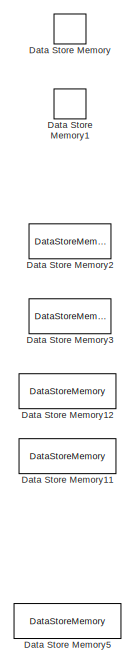
[diagram: root canvas - part 1/6, top left region]
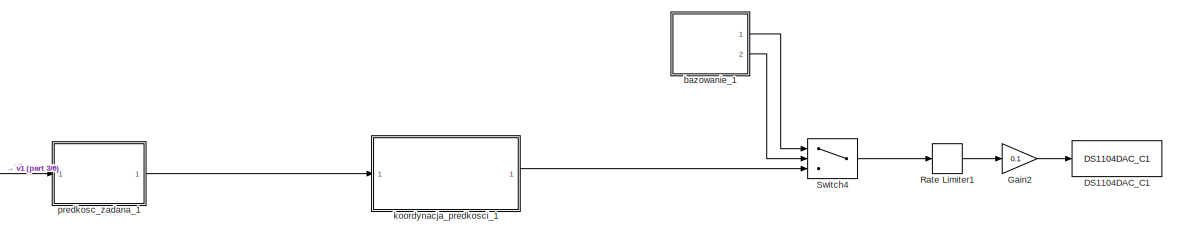
[diagram: root canvas - part 2/6, top right region]
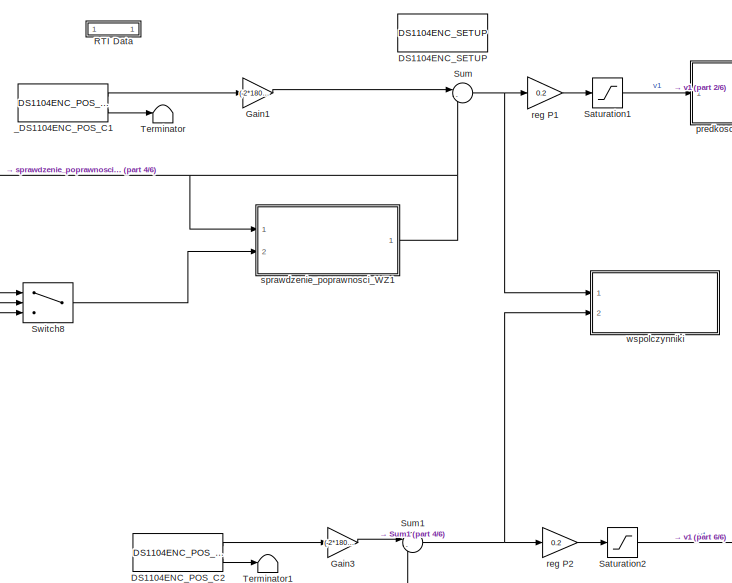
[diagram: root canvas - part 3/6, central region]
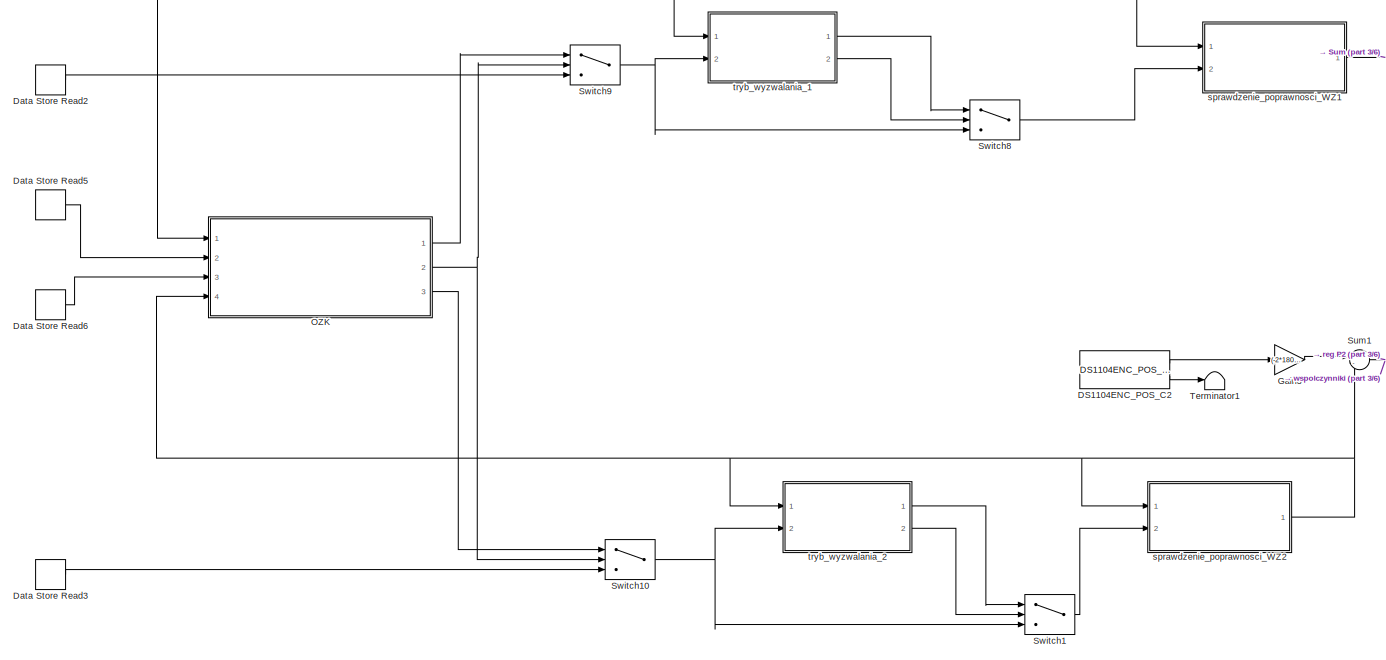
[diagram: root canvas - part 4/6, central region]
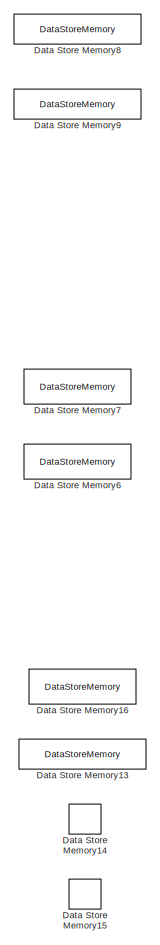
[diagram: root canvas - part 5/6, bottom left region]
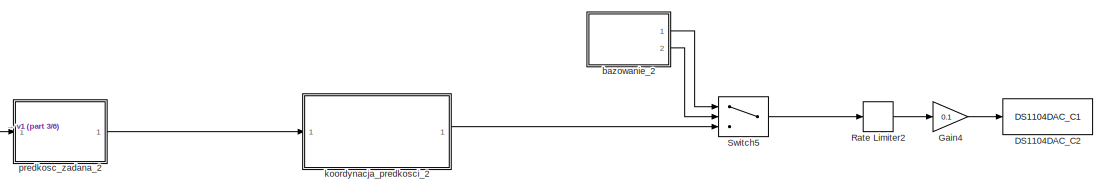
[diagram: root canvas - part 6/6, middle right region]
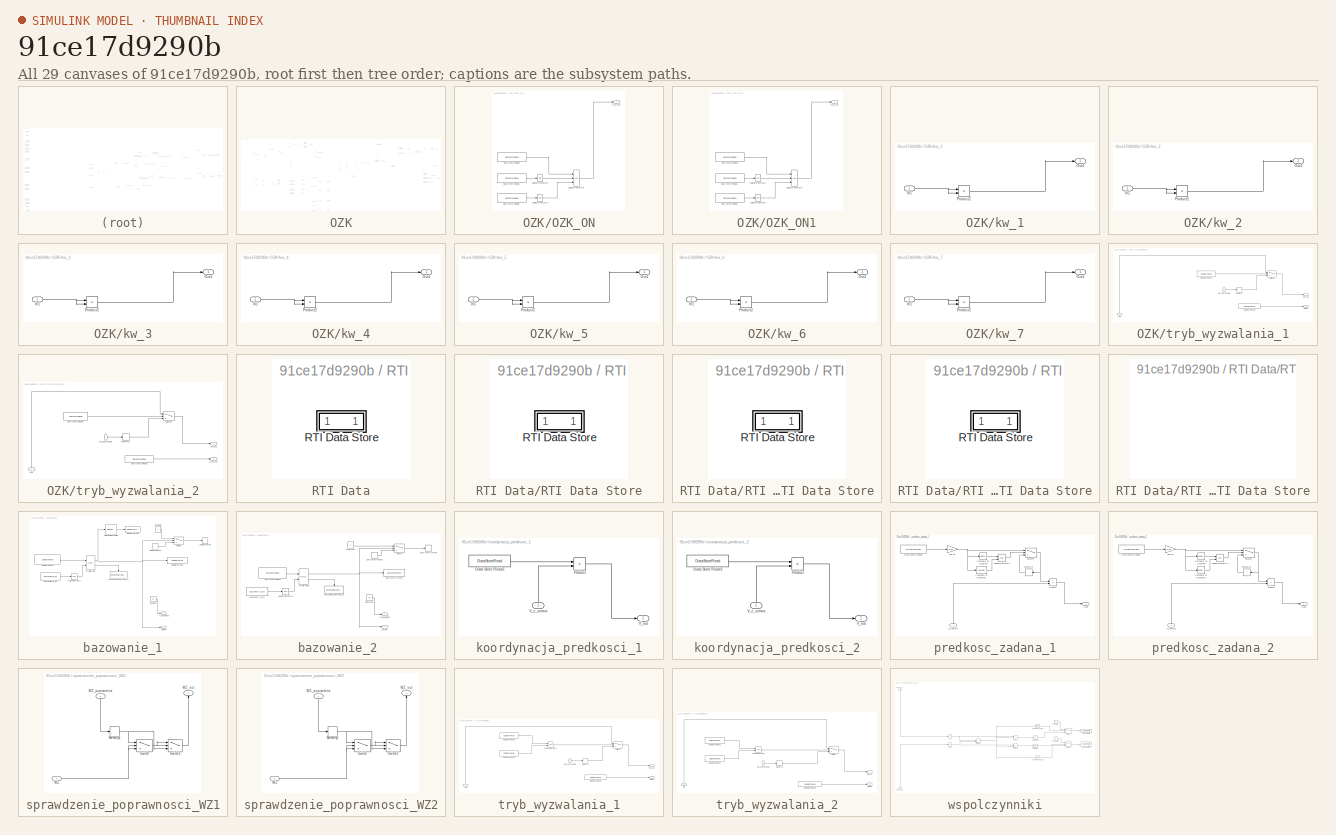
[diagram: thumbnail index - all 29 canvases of the model, root first then tree order]
MODEL slx_91ce17d9290b
KIND model
CONFIG AbsTol = auto
CONFIG FixedStep = 0.001
CONFIG MaxStep = auto
CONFIG MinStep = auto
CONFIG PostLoadFcn = , if any(exist('dsrtsu_mdlpostloadfcn', 'file') == [2, 3, 6]), try dsrtsu_mdlpostloadfcn('Execute', bdroot); catch fprintf('Error in PostLoadFcn (dsrtsu_mdlpostloadfcn) for model "%s":\n %s\n', bdroot, lasterr); end, end, \n
CONFIG RelTol = 1e-3
CONFIG SampleTimeConstraint = Unconstrained
CONFIG Solver = ode1
CONFIG SolverMode = Auto
CONFIG SolverName = ode1
CONFIG StartTime = 0.0
CONFIG StopTime = Inf
BLOCK [Reference] DS1104DAC_C1  REF=rtilib1104/DS1104 MASTER PPC/DS1104DAC_C1
  ChannelNo = 1
  DSProperties = struct('RTI',struct('Version',uint32(1),'BlockType',struct('isSLSource',uint8(0),'isSLSink',uint8(1),'isHWSource',uint8(0),'isHWSink',uint8(1),'isSetup',uint8(0),'isInline',uint8(1),'isNonInline',uint8(0),'isInterrupt',uint8(0),'isChannelwise',uint8(1)),'IOBoardType','DS1104MASTER','UnitType','DAC','Identifier','DAC','DialogType','ML','BlockSet','NONE','SlaveProcessor','NONE'))
  DialogFcn = gui1104dac
  InitValue = 0
  Ports = [1]
  Reserved1 = []
  Reserved2 = []
  Reserved3 = []
  Reserved4 = []
  SourceBlock = rtilib1104/DS1104 MASTER PPC/DS1104DAC_C1
  SourceType = RTI
  TermMode = 0
  TermValue = 0
  UnitName = { 'DS1104DAC_C'}
  UnitValues = { 1 }
BLOCK [Reference] DS1104DAC_C2  REF=rtilib1104/DS1104 MASTER PPC/DS1104DAC_C1
  ChannelNo = 2
  DSProperties = struct('RTI',struct('Version',uint32(1),'BlockType',struct('isSLSource',uint8(0),'isSLSink',uint8(1),'isHWSource',uint8(0),'isHWSink',uint8(1),'isSetup',uint8(0),'isInline',uint8(1),'isNonInline',uint8(0),'isInterrupt',uint8(0),'isChannelwise',uint8(1)),'IOBoardType','DS1104MASTER','UnitType','DAC','Identifier','DAC','DialogType','ML','BlockSet','NONE','SlaveProcessor','NONE'))
  DialogFcn = gui1104dac
  InitValue = 0
  Ports = [1]
  Reserved1 = []
  Reserved2 = []
  Reserved3 = []
  Reserved4 = []
  SourceBlock = rtilib1104/DS1104 MASTER PPC/DS1104DAC_C1
  SourceType = RTI
  TermMode = 0
  TermValue = 0
  UnitName = { 'DS1104DAC_C'}
  UnitValues = {2}
BLOCK [Reference] DS1104ENC_POS_C2  REF=rtilib1104/DS1104 MASTER PPC/DS1104ENC_POS_C1
  ChannelNo = 2
  DSProperties = struct('RTI',struct('Version',uint32(1),'BlockType',struct('isSLSource',uint8(1),'isSLSink',uint8(0),'isHWSource',uint8(1),'isHWSink',uint8(0),'isSetup',uint8(0),'isInline',uint8(1),'isNonInline',uint8(0),'isInterrupt',uint8(0),'isChannelwise',uint8(1)),'IOBoardType','DS1104MASTER','UnitType','ENC','Identifier','ENCPOSCH','DialogType','ML','BlockSet','NONE','SlaveProcessor','NONE'))
  DialogFcn = gui1104enc_pos
  Ports = [0, 2]
  PosValue = 0
  Reserved1 = []
  Reserved2 = []
  Reserved3 = []
  Reserved4 = []
  SourceBlock = rtilib1104/DS1104 MASTER PPC/DS1104ENC_POS_C1
  SourceType = RTI
  UnitName = {'DS1104ENC_POS_C'}
  UnitValues = { 2 }
BLOCK [Reference] DS1104ENC_SETUP  REF=rtilib1104/DS1104 MASTER PPC/DS1104ENC_SETUP
  DSProperties = struct('RTI',struct('Version',uint32(1),'BlockType',struct('isSLSource',uint8(0),'isSLSink',uint8(0),'isHWSource',uint8(0),'isHWSink',uint8(0),'isSetup',uint8(0),'isInline',uint8(1),'isNonInline',uint8(0),'isInterrupt',uint8(0),'isChannelwise',uint8(0)),'IOBoardType','DS1104MASTER','UnitType','ENC','Identifier','ENCSETUP','DialogType','ML','BlockSet','NONE','SlaveProcessor','NONE'))
  DialogFcn = gui1104enc_setup
  Ports = []
  Reserved1 = []
  Reserved2 = []
  Reserved3 = []
  Reserved4 = []
  SignalType = [0 0]
  SourceBlock = rtilib1104/DS1104 MASTER PPC/DS1104ENC_SETUP
  SourceType = RTI
  UnitName = {'DS1104ENC_SETUP'}
  UnitValues = { [] }
BLOCK [DataStoreMemory] Data Store Memory
  DataStoreName = WZ1
  ReadBeforeWriteMsg = warning
  WriteAfterReadMsg = warning
  WriteAfterWriteMsg = warning
BLOCK [DataStoreMemory] Data Store Memory1
  DataStoreName = WZ2
  ReadBeforeWriteMsg = warning
  WriteAfterReadMsg = warning
  WriteAfterWriteMsg = warning
BLOCK [DataStoreMemory] Data Store Memory11
  DataStoreName = trwa_bazowanie2
  InitialValue = false
  OutDataTypeStr = boolean
  ReadBeforeWriteMsg = warning
  WriteAfterReadMsg = warning
  WriteAfterWriteMsg = warning
BLOCK [DataStoreMemory] Data Store Memory12
  DataStoreName = trwa_bazowanie1
  InitialValue = false
  OutDataTypeStr = boolean
  ReadBeforeWriteMsg = warning
  WriteAfterReadMsg = warning
  WriteAfterWriteMsg = warning
BLOCK [DataStoreMemory] Data Store Memory13
  DataStoreName = konfiguracja
  ReadBeforeWriteMsg = warning
  WriteAfterReadMsg = warning
  WriteAfterWriteMsg = warning
BLOCK [DataStoreMemory] Data Store Memory14
  DataStoreName = WZx
  ReadBeforeWriteMsg = warning
  WriteAfterReadMsg = warning
  WriteAfterWriteMsg = warning
BLOCK [DataStoreMemory] Data Store Memory15
  DataStoreName = WZy
  ReadBeforeWriteMsg = warning
  WriteAfterReadMsg = warning
  WriteAfterWriteMsg = warning
BLOCK [DataStoreMemory] Data Store Memory16
  DataStoreName = OZK_ON
  InitialValue = false
  OutDataTypeStr = boolean
  ReadBeforeWriteMsg = warning
  WriteAfterReadMsg = warning
  WriteAfterWriteMsg = warning
BLOCK [DataStoreMemory] Data Store Memory2
  DataStoreName = bazowanie1
  InitialValue = false
  OutDataTypeStr = boolean
  ReadBeforeWriteMsg = warning
  WriteAfterReadMsg = warning
  WriteAfterWriteMsg = warning
BLOCK [DataStoreMemory] Data Store Memory3
  DataStoreName = bazowanie2
  InitialValue = false
  OutDataTypeStr = boolean
  ReadBeforeWriteMsg = warning
  WriteAfterReadMsg = warning
  WriteAfterWriteMsg = warning
BLOCK [DataStoreMemory] Data Store Memory5
  DataStoreName = V_zadana_wartosc
  InitialValue = 100
  OutDataTypeStr = double
  ReadBeforeWriteMsg = warning
  WriteAfterReadMsg = warning
  WriteAfterWriteMsg = warning
BLOCK [DataStoreMemory] Data Store Memory6
  DataStoreName = wyzwolenie
  InitialValue = false
  OutDataTypeStr = boolean
  ReadBeforeWriteMsg = warning
  WriteAfterReadMsg = warning
  WriteAfterWriteMsg = warning
BLOCK [DataStoreMemory] Data Store Memory7
  DataStoreName = wyzwalanie_ON
  InitialValue = false
  OutDataTypeStr = boolean
  ReadBeforeWriteMsg = warning
  WriteAfterReadMsg = warning
  WriteAfterWriteMsg = warning
BLOCK [DataStoreMemory] Data Store Memory8
  DataStoreName = wspolczynnik_1
  ReadBeforeWriteMsg = warning
  WriteAfterReadMsg = warning
  WriteAfterWriteMsg = warning
BLOCK [DataStoreMemory] Data Store Memory9
  DataStoreName = wspolczynnik_2
  ReadBeforeWriteMsg = warning
  WriteAfterReadMsg = warning
  WriteAfterWriteMsg = warning
BLOCK [DataStoreRead] Data Store Read2
  DataStoreName = WZ1
  DialogController = Simulink.DDGSource
  Ports = [0, 1]
BLOCK [DataStoreRead] Data Store Read3
  DataStoreName = WZ2
  Ports = [0, 1]
BLOCK [DataStoreRead] Data Store Read5
  DataStoreName = WZx
  Ports = [0, 1]
BLOCK [DataStoreRead] Data Store Read6
  DataStoreName = WZy
  Ports = [0, 1]
BLOCK [Gain] Gain1
  Gain = (-2*180)/(500*128)
  OutDataTypeStr = Inherit: Inherit via internal rule
  ParamDataTypeStr = Inherit: Inherit via internal rule
  SaturateOnIntegerOverflow = off
BLOCK [Gain] Gain2
  Gain = 0.1
  OutDataTypeStr = Inherit: Inherit via internal rule
  ParamDataTypeStr = Inherit: Inherit via internal rule
  SaturateOnIntegerOverflow = off
BLOCK [Gain] Gain3
  Gain = (-2*180)/(500*128)
  OutDataTypeStr = Inherit: Inherit via internal rule
  ParamDataTypeStr = Inherit: Inherit via internal rule
  SaturateOnIntegerOverflow = off
BLOCK [Gain] Gain4
  Gain = 0.1
  OutDataTypeStr = Inherit: Inherit via internal rule
  ParamDataTypeStr = Inherit: Inherit via internal rule
  SaturateOnIntegerOverflow = off
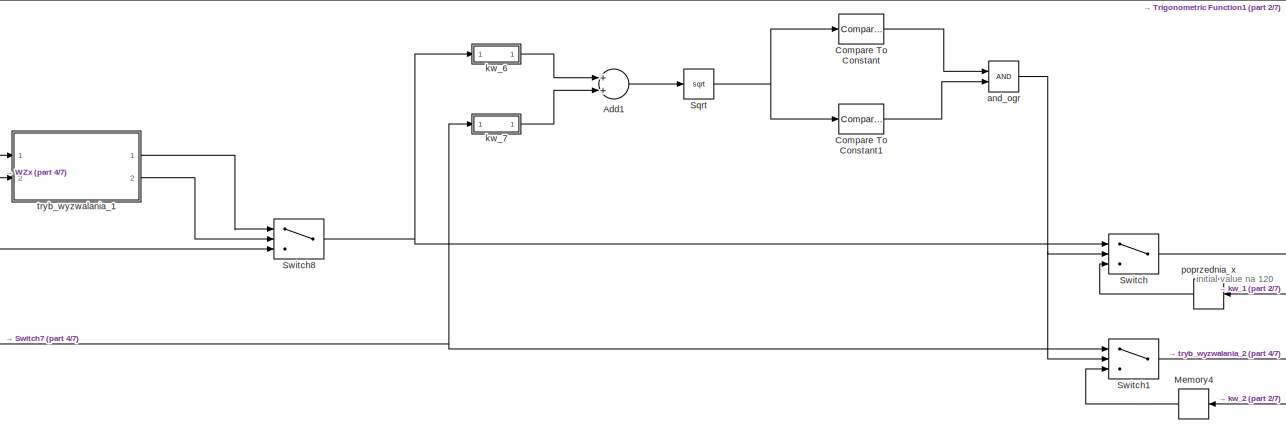
[diagram: OZK - part 1/7, top left region]
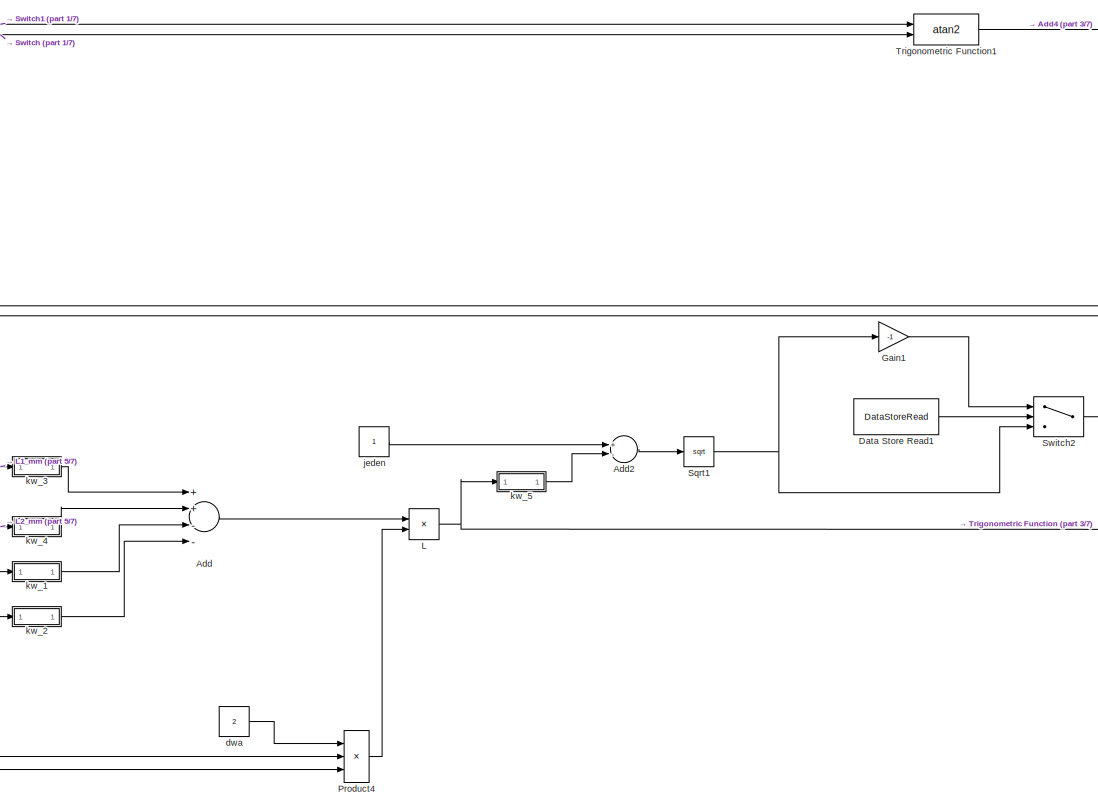
[diagram: OZK - part 2/7, top center region]
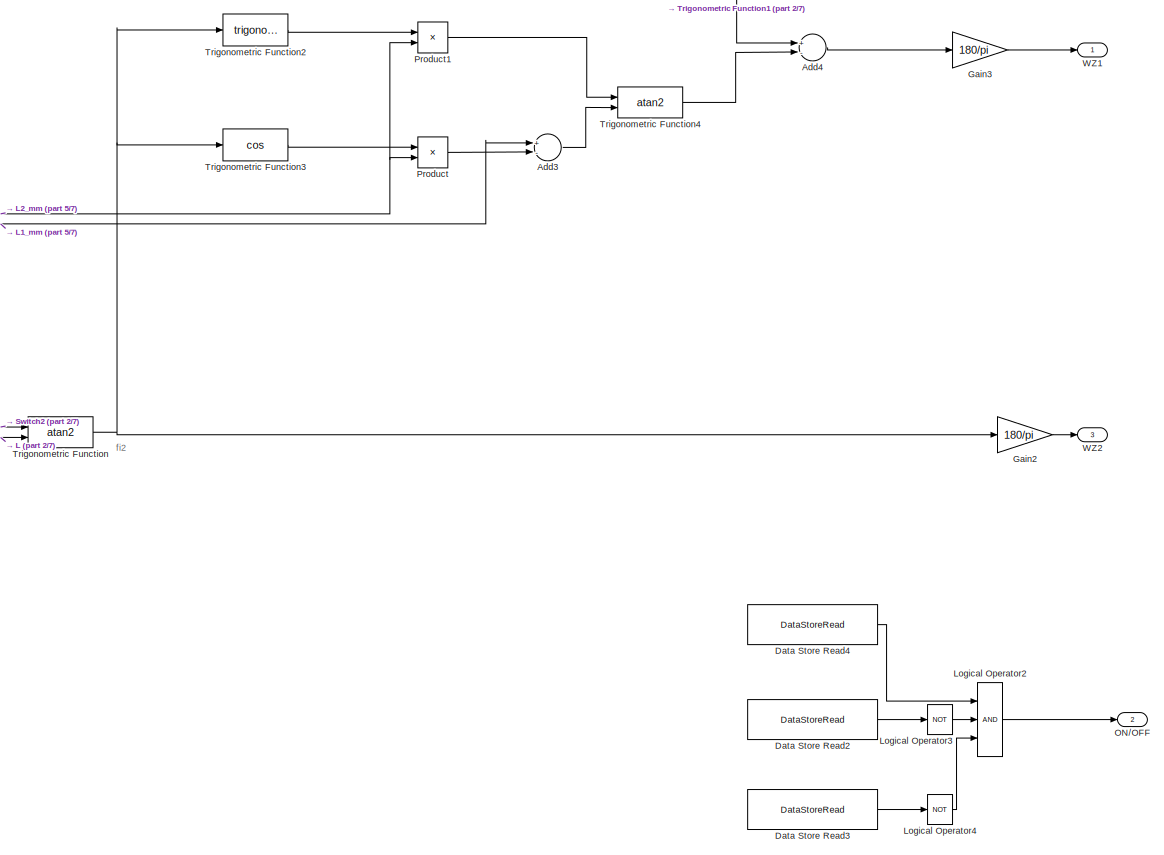
[diagram: OZK - part 3/7, middle right region]
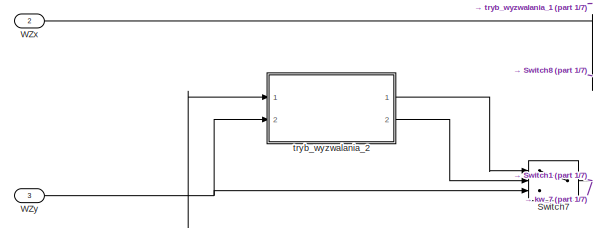
[diagram: OZK - part 4/7, top left region]
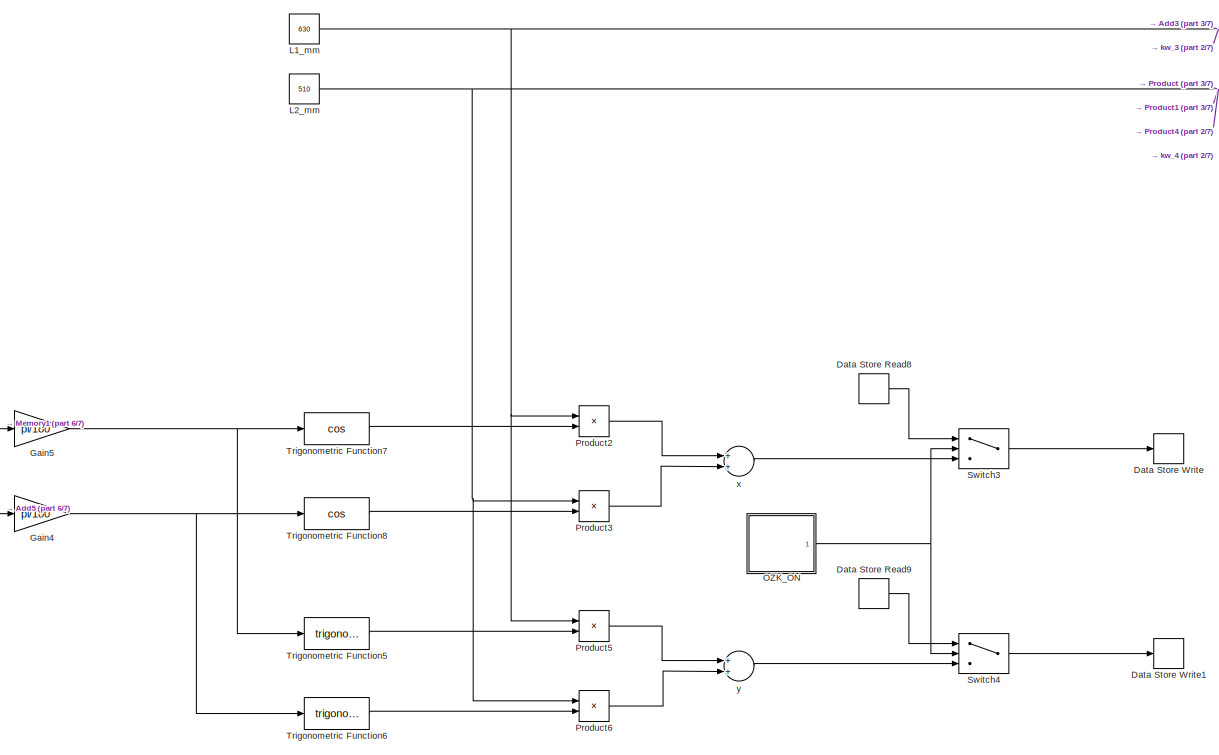
[diagram: OZK - part 5/7, middle left region]
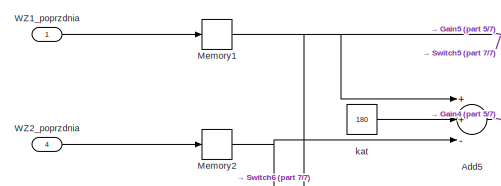
[diagram: OZK - part 6/7, middle left region]
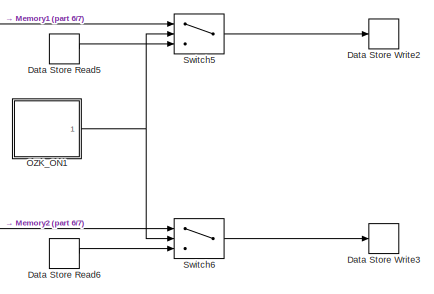
[diagram: OZK - part 7/7, bottom center region]
BLOCK [SubSystem] OZK
  Ports = [4, 3]
  RequestExecContextInheritance = off
BLOCK [Sum] OZK/Add
  InputSameDT = off
  Inputs = ++--
  OutDataTypeStr = Inherit: Inherit via internal rule
  Ports = [4, 1]
  SaturateOnIntegerOverflow = off
BLOCK [Sum] OZK/Add1
  InputSameDT = off
  OutDataTypeStr = Inherit: Inherit via internal rule
  Ports = [2, 1]
  SaturateOnIntegerOverflow = off
BLOCK [Sum] OZK/Add2
  InputSameDT = off
  Inputs = +-
  OutDataTypeStr = Inherit: Inherit via internal rule
  Ports = [2, 1]
  SaturateOnIntegerOverflow = off
BLOCK [Sum] OZK/Add3
  InputSameDT = off
  Inputs = +-
  OutDataTypeStr = Inherit: Inherit via internal rule
  Ports = [2, 1]
  SaturateOnIntegerOverflow = off
BLOCK [Sum] OZK/Add4
  InputSameDT = off
  Inputs = +-
  OutDataTypeStr = Inherit: Inherit via internal rule
  Ports = [2, 1]
  SaturateOnIntegerOverflow = off
BLOCK [Sum] OZK/Add5
  InputSameDT = off
  Inputs = ++-
  OutDataTypeStr = Inherit: Inherit via internal rule
  Ports = [3, 1]
  SaturateOnIntegerOverflow = off
BLOCK [Reference] OZK/Compare To Constant  REF=simulink/Logic and Bit
Operations/Compare
To Constant
  OutDataTypeStr = boolean
  Ports = [1, 1]
  SourceBlock = simulink/Logic and Bit\nOperations/Compare\nTo Constant
  SourceType = Compare To Constant
  ZeroCross = on
  const = 120
  relop = >=
BLOCK [Reference] OZK/Compare To Constant1  REF=simulink/Logic and Bit
Operations/Compare
To Constant
  OutDataTypeStr = boolean
  Ports = [1, 1]
  SourceBlock = simulink/Logic and Bit\nOperations/Compare\nTo Constant
  SourceType = Compare To Constant
  ZeroCross = on
  const = 1140
  relop = <=
BLOCK [DataStoreRead] OZK/Data Store Read1
  DataStoreName = konfiguracja
  Ports = [0, 1]
BLOCK [DataStoreRead] OZK/Data Store Read2
  DataStoreName = trwa_bazowanie1
  Ports = [0, 1]
BLOCK [DataStoreRead] OZK/Data Store Read3
  DataStoreName = trwa_bazowanie2
  Ports = [0, 1]
BLOCK [DataStoreRead] OZK/Data Store Read4
  DataStoreName = OZK_ON
  Ports = [0, 1]
BLOCK [DataStoreRead] OZK/Data Store Read5
  DataStoreName = WZ1
  Ports = [0, 1]
BLOCK [DataStoreRead] OZK/Data Store Read6
  DataStoreName = WZ2
  Ports = [0, 1]
BLOCK [DataStoreRead] OZK/Data Store Read8
  DataStoreName = WZx
  Ports = [0, 1]
BLOCK [DataStoreRead] OZK/Data Store Read9
  DataStoreName = WZy
  Ports = [0, 1]
BLOCK [DataStoreWrite] OZK/Data Store Write
  DataStoreName = WZx
  Ports = [1]
BLOCK [DataStoreWrite] OZK/Data Store Write1
  DataStoreName = WZy
  Ports = [1]
BLOCK [DataStoreWrite] OZK/Data Store Write2
  DataStoreName = WZ1
  Ports = [1]
BLOCK [DataStoreWrite] OZK/Data Store Write3
  DataStoreName = WZ2
  Ports = [1]
BLOCK [Gain] OZK/Gain1
  Gain = -1
  OutDataTypeStr = Inherit: Inherit via internal rule
  ParamDataTypeStr = Inherit: Inherit via internal rule
  SaturateOnIntegerOverflow = off
BLOCK [Gain] OZK/Gain2
  Gain = 180/pi
  OutDataTypeStr = Inherit: Inherit via internal rule
  ParamDataTypeStr = Inherit: Inherit via internal rule
  SaturateOnIntegerOverflow = off
BLOCK [Gain] OZK/Gain3
  Gain = 180/pi
  OutDataTypeStr = Inherit: Inherit via internal rule
  ParamDataTypeStr = Inherit: Inherit via internal rule
  SaturateOnIntegerOverflow = off
BLOCK [Gain] OZK/Gain4
  Gain = pi/180
  OutDataTypeStr = Inherit: Inherit via internal rule
  ParamDataTypeStr = Inherit: Inherit via internal rule
  SaturateOnIntegerOverflow = off
BLOCK [Gain] OZK/Gain5
  Gain = pi/180
  OutDataTypeStr = Inherit: Inherit via internal rule
  ParamDataTypeStr = Inherit: Inherit via internal rule
  SaturateOnIntegerOverflow = off
BLOCK [Product] OZK/L
  InputSameDT = off
  Inputs = */
  OutDataTypeStr = Inherit: Inherit via internal rule
  Ports = [2, 1]
  RndMeth = Floor
  SaturateOnIntegerOverflow = off
BLOCK [Constant] OZK/L1_mm
  Value = 630
BLOCK [Constant] OZK/L2_mm 
  Value = 510
BLOCK [Logic] OZK/Logical Operator2
  AllPortsSameDT = off
  Inputs = 3
  Ports = [3, 1]
BLOCK [Logic] OZK/Logical Operator3
  AllPortsSameDT = off
  Inputs = 3
  Operator = NOT
  Ports = [1, 1]
BLOCK [Logic] OZK/Logical Operator4
  AllPortsSameDT = off
  Inputs = 3
  Operator = NOT
  Ports = [1, 1]
BLOCK [Memory] OZK/Memory1
BLOCK [Memory] OZK/Memory2
BLOCK [Memory] OZK/Memory4
BLOCK [Outport] OZK/ON//OFF
  IconDisplay = Port number
  Port = 2
BLOCK [SubSystem] OZK/OZK_ON
  Ports = [0, 1]
  RequestExecContextInheritance = off
BLOCK [DataStoreRead] OZK/OZK_ON/Data Store Read5
  DataStoreName = trwa_bazowanie1
  Ports = [0, 1]
BLOCK [DataStoreRead] OZK/OZK_ON/Data Store Read6
  DataStoreName = trwa_bazowanie2
  Ports = [0, 1]
BLOCK [DataStoreRead] OZK/OZK_ON/Data Store Read7
  DataStoreName = OZK_ON
  Ports = [0, 1]
BLOCK [Logic] OZK/OZK_ON/Logical Operator5
  AllPortsSameDT = off
  Inputs = 3
  Ports = [3, 1]
BLOCK [Logic] OZK/OZK_ON/Logical Operator6
  AllPortsSameDT = off
  Inputs = 3
  Operator = NOT
  Ports = [1, 1]
BLOCK [Logic] OZK/OZK_ON/Logical Operator7
  AllPortsSameDT = off
  Inputs = 3
  Operator = NOT
  Ports = [1, 1]
BLOCK [Outport] OZK/OZK_ON/ON//OFF
  IconDisplay = Port number
BLOCK [SubSystem] OZK/OZK_ON1
  Ports = [0, 1]
  RequestExecContextInheritance = off
BLOCK [DataStoreRead] OZK/OZK_ON1/Data Store Read5
  DataStoreName = trwa_bazowanie1
  Ports = [0, 1]
BLOCK [DataStoreRead] OZK/OZK_ON1/Data Store Read6
  DataStoreName = trwa_bazowanie2
  Ports = [0, 1]
BLOCK [DataStoreRead] OZK/OZK_ON1/Data Store Read7
  DataStoreName = OZK_ON
  Ports = [0, 1]
BLOCK [Logic] OZK/OZK_ON1/Logical Operator5
  AllPortsSameDT = off
  Inputs = 3
  Ports = [3, 1]
BLOCK [Logic] OZK/OZK_ON1/Logical Operator6
  AllPortsSameDT = off
  Inputs = 3
  Operator = NOT
  Ports = [1, 1]
BLOCK [Logic] OZK/OZK_ON1/Logical Operator7
  AllPortsSameDT = off
  Inputs = 3
  Operator = NOT
  Ports = [1, 1]
BLOCK [Outport] OZK/OZK_ON1/ON//OFF
  IconDisplay = Port number
BLOCK [Product] OZK/Product
  InputSameDT = off
  OutDataTypeStr = Inherit: Inherit via internal rule
  Ports = [2, 1]
  RndMeth = Floor
  SaturateOnIntegerOverflow = off
BLOCK [Product] OZK/Product1
  InputSameDT = off
  OutDataTypeStr = Inherit: Inherit via internal rule
  Ports = [2, 1]
  RndMeth = Floor
  SaturateOnIntegerOverflow = off
BLOCK [Product] OZK/Product2
  InputSameDT = off
  OutDataTypeStr = Inherit: Inherit via internal rule
  Ports = [2, 1]
  RndMeth = Floor
  SaturateOnIntegerOverflow = off
BLOCK [Product] OZK/Product3
  InputSameDT = off
  OutDataTypeStr = Inherit: Inherit via internal rule
  Ports = [2, 1]
  RndMeth = Floor
  SaturateOnIntegerOverflow = off
BLOCK [Product] OZK/Product4
  InputSameDT = off
  Inputs = 3
  OutDataTypeStr = Inherit: Inherit via internal rule
  Ports = [3, 1]
  RndMeth = Floor
  SaturateOnIntegerOverflow = off
BLOCK [Product] OZK/Product5
  InputSameDT = off
  OutDataTypeStr = Inherit: Inherit via internal rule
  Ports = [2, 1]
  RndMeth = Floor
  SaturateOnIntegerOverflow = off
BLOCK [Product] OZK/Product6
  InputSameDT = off
  OutDataTypeStr = Inherit: Inherit via internal rule
  Ports = [2, 1]
  RndMeth = Floor
  SaturateOnIntegerOverflow = off
BLOCK [Sqrt] OZK/Sqrt
  OutMin = 0
  OutputSignalType = real
BLOCK [Sqrt] OZK/Sqrt1
BLOCK [Switch] OZK/Switch
  Criteria = u2 > Threshold
  InputSameDT = off
  SaturateOnIntegerOverflow = off
BLOCK [Switch] OZK/Switch1
  Criteria = u2 > Threshold
  InputSameDT = off
  SaturateOnIntegerOverflow = off
BLOCK [Switch] OZK/Switch2
  Criteria = u2 > Threshold
  InputSameDT = off
  SaturateOnIntegerOverflow = off
BLOCK [Switch] OZK/Switch3
  Criteria = u2 > Threshold
  InputSameDT = off
  SaturateOnIntegerOverflow = off
BLOCK [Switch] OZK/Switch4
  Criteria = u2 > Threshold
  InputSameDT = off
  SaturateOnIntegerOverflow = off
BLOCK [Switch] OZK/Switch5
  Criteria = u2 > Threshold
  InputSameDT = off
  SaturateOnIntegerOverflow = off
BLOCK [Switch] OZK/Switch6
  Criteria = u2 > Threshold
  InputSameDT = off
  SaturateOnIntegerOverflow = off
BLOCK [Switch] OZK/Switch7
  Criteria = u2 > Threshold
  InputSameDT = off
  SaturateOnIntegerOverflow = off
BLOCK [Switch] OZK/Switch8
  Criteria = u2 > Threshold
  InputSameDT = off
  SaturateOnIntegerOverflow = off
BLOCK [Trigonometry] OZK/Trigonometric Function
  Operator = atan2
  Ports = [2, 1]
BLOCK [Trigonometry] OZK/Trigonometric Function1
  Operator = atan2
  Ports = [2, 1]
BLOCK [Trigonometry] OZK/Trigonometric Function2
  Ports = [1, 1]
BLOCK [Trigonometry] OZK/Trigonometric Function3
  Operator = cos
  Ports = [1, 1]
BLOCK [Trigonometry] OZK/Trigonometric Function4
  Operator = atan2
  Ports = [2, 1]
BLOCK [Trigonometry] OZK/Trigonometric Function5
  Ports = [1, 1]
BLOCK [Trigonometry] OZK/Trigonometric Function6
  Ports = [1, 1]
BLOCK [Trigonometry] OZK/Trigonometric Function7
  Operator = cos
  Ports = [1, 1]
BLOCK [Trigonometry] OZK/Trigonometric Function8
  Operator = cos
  Ports = [1, 1]
BLOCK [Outport] OZK/WZ1
  IconDisplay = Port number
BLOCK [Inport] OZK/WZ1_poprzdnia
  IconDisplay = Port number
BLOCK [Outport] OZK/WZ2
  IconDisplay = Port number
  Port = 3
BLOCK [Inport] OZK/WZ2_poprzdnia 
  IconDisplay = Port number
  Port = 4
BLOCK [Inport] OZK/WZx
  IconDisplay = Port number
  Port = 2
BLOCK [Inport] OZK/WZy
  IconDisplay = Port number
  Port = 3
BLOCK [Logic] OZK/and_ogr
  AllPortsSameDT = off
  Ports = [2, 1]
BLOCK [Constant] OZK/dwa
  Value = 2
BLOCK [Constant] OZK/jeden
BLOCK [Constant] OZK/kat 
  Value = 180
BLOCK [SubSystem] OZK/kw_1
  Ports = [1, 1]
  RequestExecContextInheritance = off
BLOCK [Inport] OZK/kw_1/In1
  IconDisplay = Port number
BLOCK [Outport] OZK/kw_1/Out1
  IconDisplay = Port number
BLOCK [Product] OZK/kw_1/Product2
  InputSameDT = off
  OutDataTypeStr = Inherit: Inherit via internal rule
  Ports = [2, 1]
  RndMeth = Floor
  SaturateOnIntegerOverflow = off
BLOCK [SubSystem] OZK/kw_2
  Ports = [1, 1]
  RequestExecContextInheritance = off
BLOCK [Inport] OZK/kw_2/In1
  IconDisplay = Port number
BLOCK [Outport] OZK/kw_2/Out1
  IconDisplay = Port number
BLOCK [Product] OZK/kw_2/Product2
  InputSameDT = off
  OutDataTypeStr = Inherit: Inherit via internal rule
  Ports = [2, 1]
  RndMeth = Floor
  SaturateOnIntegerOverflow = off
BLOCK [SubSystem] OZK/kw_3
  Ports = [1, 1]
  RequestExecContextInheritance = off
BLOCK [Inport] OZK/kw_3/In1
  IconDisplay = Port number
BLOCK [Outport] OZK/kw_3/Out1
  IconDisplay = Port number
BLOCK [Product] OZK/kw_3/Product2
  InputSameDT = off
  OutDataTypeStr = Inherit: Inherit via internal rule
  Ports = [2, 1]
  RndMeth = Floor
  SaturateOnIntegerOverflow = off
BLOCK [SubSystem] OZK/kw_4
  Ports = [1, 1]
  RequestExecContextInheritance = off
BLOCK [Inport] OZK/kw_4/In1
  IconDisplay = Port number
BLOCK [Outport] OZK/kw_4/Out1
  IconDisplay = Port number
BLOCK [Product] OZK/kw_4/Product2
  InputSameDT = off
  OutDataTypeStr = Inherit: Inherit via internal rule
  Ports = [2, 1]
  RndMeth = Floor
  SaturateOnIntegerOverflow = off
BLOCK [SubSystem] OZK/kw_5
  Ports = [1, 1]
  RequestExecContextInheritance = off
BLOCK [Inport] OZK/kw_5/In1
  IconDisplay = Port number
BLOCK [Outport] OZK/kw_5/Out1
  IconDisplay = Port number
BLOCK [Product] OZK/kw_5/Product2
  InputSameDT = off
  OutDataTypeStr = Inherit: Inherit via internal rule
  Ports = [2, 1]
  RndMeth = Floor
  SaturateOnIntegerOverflow = off
BLOCK [SubSystem] OZK/kw_6
  Ports = [1, 1]
  RequestExecContextInheritance = off
BLOCK [Inport] OZK/kw_6/In1
  IconDisplay = Port number
BLOCK [Outport] OZK/kw_6/Out1
  IconDisplay = Port number
BLOCK [Product] OZK/kw_6/Product2
  InputSameDT = off
  OutDataTypeStr = Inherit: Inherit via internal rule
  Ports = [2, 1]
  RndMeth = Floor
  SaturateOnIntegerOverflow = off
BLOCK [SubSystem] OZK/kw_7
  Ports = [1, 1]
  RequestExecContextInheritance = off
BLOCK [Inport] OZK/kw_7/In1
  IconDisplay = Port number
BLOCK [Outport] OZK/kw_7/Out1
  IconDisplay = Port number
BLOCK [Product] OZK/kw_7/Product2
  InputSameDT = off
  OutDataTypeStr = Inherit: Inherit via internal rule
  Ports = [2, 1]
  RndMeth = Floor
  SaturateOnIntegerOverflow = off
BLOCK [Memory] OZK/poprzednia_x
  X0 = 120
BLOCK [SubSystem] OZK/tryb_wyzwalania_1
  Ports = [2, 2]
  RequestExecContextInheritance = off
BLOCK [DataStoreRead] OZK/tryb_wyzwalania_1/Data Store Read2
  DataStoreName = wyzwalanie_ON
  Ports = [0, 1]
BLOCK [DataStoreRead] OZK/tryb_wyzwalania_1/Data Store Read3
  DataStoreName = wyzwolenie
  Ports = [0, 1]
BLOCK [Memory] OZK/tryb_wyzwalania_1/Memory3
BLOCK [Outport] OZK/tryb_wyzwalania_1/ON//OFF
  IconDisplay = Port number
  Port = 2
BLOCK [Switch] OZK/tryb_wyzwalania_1/Switch9
  Criteria = u2 > Threshold
  InputSameDT = off
  SaturateOnIntegerOverflow = off
BLOCK [Inport] OZK/tryb_wyzwalania_1/WZ
  IconDisplay = Port number
  Port = 2
BLOCK [Outport] OZK/tryb_wyzwalania_1/WZ_out
  IconDisplay = Port number
BLOCK [Inport] OZK/tryb_wyzwalania_1/WZ_poprzednia
  IconDisplay = Port number
BLOCK [SubSystem] OZK/tryb_wyzwalania_2
  Ports = [2, 2]
  RequestExecContextInheritance = off
BLOCK [DataStoreRead] OZK/tryb_wyzwalania_2/Data Store Read2
  DataStoreName = wyzwalanie_ON
  Ports = [0, 1]
BLOCK [DataStoreRead] OZK/tryb_wyzwalania_2/Data Store Read3
  DataStoreName = wyzwolenie
  Ports = [0, 1]
BLOCK [Memory] OZK/tryb_wyzwalania_2/Memory3
BLOCK [Outport] OZK/tryb_wyzwalania_2/ON//OFF
  IconDisplay = Port number
  Port = 2
BLOCK [Switch] OZK/tryb_wyzwalania_2/Switch9
  Criteria = u2 > Threshold
  InputSameDT = off
  SaturateOnIntegerOverflow = off
BLOCK [Inport] OZK/tryb_wyzwalania_2/WZ
  IconDisplay = Port number
  Port = 2
BLOCK [Outport] OZK/tryb_wyzwalania_2/WZ_out
  IconDisplay = Port number
BLOCK [Inport] OZK/tryb_wyzwalania_2/WZ_poprzednia
  IconDisplay = Port number
BLOCK [Sum] OZK/x
  InputSameDT = off
  OutDataTypeStr = Inherit: Inherit via internal rule
  Ports = [2, 1]
  SaturateOnIntegerOverflow = off
BLOCK [Sum] OZK/y
  InputSameDT = off
  OutDataTypeStr = Inherit: Inherit via internal rule
  Ports = [2, 1]
  SaturateOnIntegerOverflow = off
BLOCK [SubSystem] RTI Data
  CopyFcn = if exist('rtidc'), try,  rtidc('DataHostBlockClbCopy', gcbh); catch, disp(['Warning: ''CopyFcn'' for RTI Data block failed: ' lasterr]); end, end,
  DeleteFcn = if exist('rtidc'), try,  rtidc('DataHostBlockClbDelete', gcbh); catch, disp(['Warning: ''DeleteFcn'' for RTI Data block failed: ' lasterr]); end, end,
  LoadFcn = if exist('rtidc'), try,  rtidc('DataHostBlockClbLoad', gcbh); catch, disp(['Warning: ''LoadFcn'' for RTI Data block failed: ' lasterr]); end, end,
  ModelCloseFcn = if exist('rtidc'), try,  rtidc('DataHostBlockClbModelClose', gcbh); catch, disp(['Warning: ''ModelCloseFcn'' for RTI Data block failed: ' lasterr]); end, end,
  NameChangeFcn = if exist('rtidc'), try,  rtidc('DataHostBlockClbNameChange', gcbh); catch, disp(['Warning: ''NameChangeFcn'' for RTI Data block failed: ' lasterr]); end, end,
  Ports = []
  PostSaveFcn = if exist('rtidc'), try,  rtidc('DataHostBlockClbPostSave', gcbh); catch, disp(['Warning: ''PostSaveFcn'' for RTI Data block failed: ' lasterr]); end, end,
  PreSaveFcn = if exist('rtidc'), try,  rtidc('DataHostBlockClbPreSave', gcbh); catch, disp(['Warning: ''PreSaveFcn'' for RTI Data block failed: ' lasterr]); end, end,
  RequestExecContextInheritance = off
  Tag = struct('RTIDataServer',struct('RTIDataServerVs','2','RTIModelDescription','struct(''main'',''SCARA_215'',''sub'','''',''isMp'',0)'))
BLOCK [SubSystem] RTI Data/RTI Data Store
  Ports = []
  RequestExecContextInheritance = off
  Tag = struct('private',struct('version',struct('dsVer',uint32(2),'dsVerCreation',uint32(2),'RTI',struct('ver','7.4','type','RTI1104')),'access',struct('type','Model','isPerm',1,'created',['26-Mar-2018 08:24:55'],'modified',['16-Apr-2018 15:23:22'],'location','')),'public',struct('main',struct('data',[]),'sub',struct('name',{{'SCARA_215'}},'data',{{struct('TH',struct('thTaskInfo',struct('taskType',{'TIME...<+886ch>
BLOCK [SubSystem] RTI Data/RTI Data Store/RTI Data Store
  Ports = []
  RequestExecContextInheritance = off
BLOCK [SubSystem] RTI Data/RTI Data Store/RTI Data Store/RTI Data Store
  Ports = []
  RequestExecContextInheritance = off
BLOCK [SubSystem] RTI Data/RTI Data Store/RTI Data Store/RTI Data Store/RTI Data Store
  Ports = []
  RequestExecContextInheritance = off
BLOCK [RateLimiter] Rate Limiter1
  FallingSlewLimit = -50
  RisingSlewLimit = 50
  SampleTimeMode = inherited
BLOCK [RateLimiter] Rate Limiter2
  FallingSlewLimit = -50
  RisingSlewLimit = 50
  SampleTimeMode = inherited
BLOCK [Saturate] Saturation1
  InputPortMap = u0
  LowerLimit = -3
  Ports = [1, 1]
  UpperLimit = 3
BLOCK [Saturate] Saturation2
  InputPortMap = u0
  LowerLimit = -3
  Ports = [1, 1]
  UpperLimit = 3
BLOCK [Sum] Sum
  IconShape = round
  InputSameDT = off
  Inputs = |-+
  OutDataTypeStr = Inherit: Inherit via internal rule
  Ports = [2, 1]
  SaturateOnIntegerOverflow = off
BLOCK [Sum] Sum1
  IconShape = round
  InputSameDT = off
  Inputs = |-+
  OutDataTypeStr = Inherit: Inherit via internal rule
  Ports = [2, 1]
  SaturateOnIntegerOverflow = off
BLOCK [Switch] Switch1
  Criteria = u2 > Threshold
  InputSameDT = off
  SaturateOnIntegerOverflow = off
BLOCK [Switch] Switch10
  Criteria = u2 > Threshold
  InputSameDT = off
  SaturateOnIntegerOverflow = off
BLOCK [Switch] Switch4
  Criteria = u2 > Threshold
  InputSameDT = off
  SaturateOnIntegerOverflow = off
BLOCK [Switch] Switch5
  Criteria = u2 > Threshold
  InputSameDT = off
  SaturateOnIntegerOverflow = off
BLOCK [Switch] Switch8
  Criteria = u2 > Threshold
  InputSameDT = off
  SaturateOnIntegerOverflow = off
BLOCK [Switch] Switch9
  Criteria = u2 > Threshold
  InputSameDT = off
  SaturateOnIntegerOverflow = off
BLOCK [Terminator] Terminator
BLOCK [Terminator] Terminator1
BLOCK [Reference] _DS1104ENC_POS_C1  REF=rtilib1104/DS1104 MASTER PPC/DS1104ENC_POS_C1
  ChannelNo = 1
  DSProperties = struct('RTI',struct('Version',uint32(1),'BlockType',struct('isSLSource',uint8(1),'isSLSink',uint8(0),'isHWSource',uint8(1),'isHWSink',uint8(0),'isSetup',uint8(0),'isInline',uint8(1),'isNonInline',uint8(0),'isInterrupt',uint8(0),'isChannelwise',uint8(1)),'IOBoardType','DS1104MASTER','UnitType','ENC','Identifier','ENCPOSCH','DialogType','ML','BlockSet','NONE','SlaveProcessor','NONE'))
  DialogFcn = gui1104enc_pos
  Ports = [0, 2]
  PosValue = 0
  Reserved1 = []
  Reserved2 = []
  Reserved3 = []
  Reserved4 = []
  SourceBlock = rtilib1104/DS1104 MASTER PPC/DS1104ENC_POS_C1
  SourceType = RTI
  UnitName = {'DS1104ENC_POS_C'}
  UnitValues = { 1 }
BLOCK [SubSystem] bazowanie_1
  Ports = [0, 2]
  RequestExecContextInheritance = off
BLOCK [Constant] bazowanie_1/Constant
  Value = -0.3
BLOCK [Constant] bazowanie_1/Constant2
  Value = 0
BLOCK [Reference] bazowanie_1/DS1104BIT_IN_C0  REF=rtilib1104/DS1104 MASTER PPC/DS1104BIT_IN_C0
  ChannelNo = 0
  DSProperties = struct('RTI',struct('Version',uint32(1),'BlockType',struct('isSLSource',uint8(1),'isSLSink',uint8(0),'isHWSource',uint8(1),'isHWSink',uint8(0),'isSetup',uint8(0),'isInline',uint8(1),'isNonInline',uint8(0),'isInterrupt',uint8(0),'isChannelwise',uint8(1)),'IOBoardType','DS1104MASTER','UnitType','BIT','Identifier','BITINCH','DialogType','ML','BlockSet','NONE','SlaveProcessor','NONE'))
  DialogFcn = gui1104bit_in
  Ports = [0, 1]
  Reserved1 = []
  Reserved2 = []
  Reserved3 = []
  Reserved4 = []
  SourceBlock = rtilib1104/DS1104 MASTER PPC/DS1104BIT_IN_C0
  SourceType = RTI
  UnitName = {'DS1104BIT_IN_C'}
  UnitValues = { 0 }
BLOCK [Reference] bazowanie_1/DS1104ENC_SET_POS_C1  REF=rtilib1104/DS1104 MASTER PPC/DS1104ENC_SET_POS_C1
  ChannelNo = 1
  DSProperties = struct('RTI',struct('Version',uint32(1),'BlockType',struct('isSLSource',uint8(0),'isSLSink',uint8(1),'isHWSource',uint8(0),'isHWSink',uint8(1),'isSetup',uint8(0),'isInline',uint8(1),'isNonInline',uint8(0),'isInterrupt',uint8(0),'isChannelwise',uint8(1)),'IOBoardType','DS1104MASTER','UnitType','ENC','Identifier','ENCRESET','DialogType','ML','BlockSet','NONE','SlaveProcessor','NONE'))
  DialogFcn = gui1104enc_set_pos
  Ports = [0, 0, 0, 1]
  PosValue = 0
  Reserved1 = []
  Reserved2 = []
  Reserved3 = []
  Reserved4 = []
  SourceBlock = rtilib1104/DS1104 MASTER PPC/DS1104ENC_SET_POS_C1
  SourceType = RTI
  UnitName = {'DS1104ENC_SET_POS_C'}
  UnitValues = { 1 }
BLOCK [DataStoreRead] bazowanie_1/Data Store Read2
  DataStoreName = bazowanie1
  Ports = [0, 1]
BLOCK [DataStoreRead] bazowanie_1/Data Store Read4
  DataStoreName = WZ1
  DialogController = Simulink.DDGSource
  Ports = [0, 1]
BLOCK [DataStoreWrite] bazowanie_1/Data Store Write
  DataStoreName = WZ1
  Ports = [1]
BLOCK [DataStoreWrite] bazowanie_1/Data Store Write1
  DataStoreName = trwa_bazowanie1
  Ports = [1]
BLOCK [DataStoreWrite] bazowanie_1/Data Store Write2
  DataStoreName = bazowanie2
  Ports = [1]
BLOCK [Reference] bazowanie_1/Detect Fall Nonpositive  REF=simulink/Logic and Bit
Operations/Detect Fall
Nonpositive
  InputProcessing = Inherited
  OutDataTypeStr = boolean
  Ports = [1, 1]
  SourceBlock = simulink/Logic and Bit\nOperations/Detect Fall\nNonpositive
  SourceType = Detect Fall Nonpositive
  vinit = 1
BLOCK [Logic] bazowanie_1/Logical Operator1
  AllPortsSameDT = off
  Operator = NOT
  Ports = [1, 1]
BLOCK [Outport] bazowanie_1/ON//OFF
  IconDisplay = Port number
  Port = 2
BLOCK [Reference] bazowanie_1/S-R Flip-Flop  REF=simulink_extras/Flip Flops/S-R
Flip-Flop
  Ports = [2, 2]
  SourceBlock = simulink_extras/Flip Flops/S-R\nFlip-Flop
  SourceType = SRFlipFlop
  initial_condition = 0
BLOCK [Switch] bazowanie_1/Switch6
  Criteria = u2 > Threshold
  InputSameDT = off
  SaturateOnIntegerOverflow = off
BLOCK [Outport] bazowanie_1/v_bazowania
  IconDisplay = Port number
BLOCK [SubSystem] bazowanie_2 
  Ports = [0, 2]
  RequestExecContextInheritance = off
BLOCK [Constant] bazowanie_2 /Constant1
  Value = -0.3
BLOCK [Constant] bazowanie_2 /Constant3
  Value = 0
BLOCK [Reference] bazowanie_2 /DS1104BIT_IN_C1  REF=rtilib1104/DS1104 MASTER PPC/DS1104BIT_IN_C0
  ChannelNo = 1
  DSProperties = struct('RTI',struct('Version',uint32(1),'BlockType',struct('isSLSource',uint8(1),'isSLSink',uint8(0),'isHWSource',uint8(1),'isHWSink',uint8(0),'isSetup',uint8(0),'isInline',uint8(1),'isNonInline',uint8(0),'isInterrupt',uint8(0),'isChannelwise',uint8(1)),'IOBoardType','DS1104MASTER','UnitType','BIT','Identifier','BITINCH','DialogType','ML','BlockSet','NONE','SlaveProcessor','NONE'))
  DialogFcn = gui1104bit_in
  Ports = [0, 1]
  Reserved1 = []
  Reserved2 = []
  Reserved3 = []
  Reserved4 = []
  SourceBlock = rtilib1104/DS1104 MASTER PPC/DS1104BIT_IN_C0
  SourceType = RTI
  UnitName = {'DS1104BIT_IN_C'}
  UnitValues = { 1 }
BLOCK [Reference] bazowanie_2 /DS1104ENC_SET_POS_C2  REF=rtilib1104/DS1104 MASTER PPC/DS1104ENC_SET_POS_C1
  ChannelNo = 2
  DSProperties = struct('RTI',struct('Version',uint32(1),'BlockType',struct('isSLSource',uint8(0),'isSLSink',uint8(1),'isHWSource',uint8(0),'isHWSink',uint8(1),'isSetup',uint8(0),'isInline',uint8(1),'isNonInline',uint8(0),'isInterrupt',uint8(0),'isChannelwise',uint8(1)),'IOBoardType','DS1104MASTER','UnitType','ENC','Identifier','ENCRESET','DialogType','ML','BlockSet','NONE','SlaveProcessor','NONE'))
  DialogFcn = gui1104enc_set_pos
  Ports = [0, 0, 0, 1]
  PosValue = 0
  Reserved1 = []
  Reserved2 = []
  Reserved3 = []
  Reserved4 = []
  SourceBlock = rtilib1104/DS1104 MASTER PPC/DS1104ENC_SET_POS_C1
  SourceType = RTI
  UnitName = {'DS1104ENC_SET_POS_C'}
  UnitValues = {2}
BLOCK [DataStoreRead] bazowanie_2 /Data Store Read3
  DataStoreName = bazowanie2
  Ports = [0, 1]
BLOCK [DataStoreRead] bazowanie_2 /Data Store Read5
  DataStoreName = WZ2
  DialogController = Simulink.DDGSource
  Ports = [0, 1]
BLOCK [DataStoreWrite] bazowanie_2 /Data Store Write1
  DataStoreName = trwa_bazowanie2
  Ports = [1]
BLOCK [DataStoreWrite] bazowanie_2 /Data Store Write3
  DataStoreName = WZ2
  Ports = [1]
BLOCK [Logic] bazowanie_2 /Logical Operator3
  AllPortsSameDT = off
  Operator = NOT
  Ports = [1, 1]
BLOCK [Outport] bazowanie_2 /On//OFF
  IconDisplay = Port number
  Port = 2
BLOCK [Reference] bazowanie_2 /S-R Flip-Flop1  REF=simulink_extras/Flip Flops/S-R
Flip-Flop
  Ports = [2, 2]
  SourceBlock = simulink_extras/Flip Flops/S-R\nFlip-Flop
  SourceType = SRFlipFlop
  initial_condition = 0
BLOCK [Switch] bazowanie_2 /Switch7
  Criteria = u2 > Threshold
  InputSameDT = off
  SaturateOnIntegerOverflow = off
BLOCK [Outport] bazowanie_2 /v_bazowania
  IconDisplay = Port number
BLOCK [SubSystem] koordynacja_predkosci_1
  Ports = [1, 1]
  RequestExecContextInheritance = off
BLOCK [DataStoreRead] koordynacja_predkosci_1/Data Store Read3
  DataStoreName = wspolczynnik_1
  Ports = [0, 1]
BLOCK [Product] koordynacja_predkosci_1/Product
  InputSameDT = off
  OutDataTypeStr = Inherit: Inherit via internal rule
  Ports = [2, 1]
  RndMeth = Floor
  SaturateOnIntegerOverflow = off
BLOCK [Outport] koordynacja_predkosci_1/V_out
  IconDisplay = Port number
BLOCK [Inport] koordynacja_predkosci_1/V_z_serwa
  IconDisplay = Port number
BLOCK [SubSystem] koordynacja_predkosci_2
  Ports = [1, 1]
  RequestExecContextInheritance = off
BLOCK [DataStoreRead] koordynacja_predkosci_2/Data Store Read3
  DataStoreName = wspolczynnik_2
  Ports = [0, 1]
BLOCK [Product] koordynacja_predkosci_2/Product
  InputSameDT = off
  OutDataTypeStr = Inherit: Inherit via internal rule
  Ports = [2, 1]
  RndMeth = Floor
  SaturateOnIntegerOverflow = off
BLOCK [Outport] koordynacja_predkosci_2/V_out
  IconDisplay = Port number
BLOCK [Inport] koordynacja_predkosci_2/V_z_serwa
  IconDisplay = Port number
BLOCK [SubSystem] predkosc_zadana_1
  Ports = [1, 1]
  RequestExecContextInheritance = off
BLOCK [Reference] predkosc_zadana_1/Compare To Constant  REF=simulink/Logic and Bit
Operations/Compare
To Constant
  OutDataTypeStr = boolean
  Ports = [1, 1]
  SourceBlock = simulink/Logic and Bit\nOperations/Compare\nTo Constant
  SourceType = Compare To Constant
  ZeroCross = on
  const = 1
  relop = <=
BLOCK [Reference] predkosc_zadana_1/Compare To Constant1  REF=simulink/Logic and Bit
Operations/Compare
To Constant
  OutDataTypeStr = boolean
  Ports = [1, 1]
  SourceBlock = simulink/Logic and Bit\nOperations/Compare\nTo Constant
  SourceType = Compare To Constant
  ZeroCross = on
  const = 0.05
  relop = >=
BLOCK [DataStoreRead] predkosc_zadana_1/Data Store Read3
  DataStoreName = V_zadana_wartosc
  DialogController = Simulink.DDGSource
  Ports = [0, 1]
BLOCK [Logic] predkosc_zadana_1/Logical Operator1
  AllPortsSameDT = off
  Ports = [2, 1]
BLOCK [Memory] predkosc_zadana_1/Memory3
  X0 = 1
BLOCK [Product] predkosc_zadana_1/Product
  InputSameDT = off
  OutDataTypeStr = Inherit: Inherit via internal rule
  Ports = [2, 1]
  RndMeth = Floor
  SaturateOnIntegerOverflow = off
BLOCK [Switch] predkosc_zadana_1/Switch7
  Criteria = u2 > Threshold
  InputSameDT = off
  SaturateOnIntegerOverflow = off
BLOCK [Outport] predkosc_zadana_1/V_out
  IconDisplay = Port number
BLOCK [Inport] predkosc_zadana_1/V_z_serwa
  IconDisplay = Port number
BLOCK [Gain] predkosc_zadana_1/reg P3
  Gain = 0.01
  OutDataTypeStr = Inherit: Inherit via internal rule
  ParamDataTypeStr = Inherit: Inherit via internal rule
  SaturateOnIntegerOverflow = off
BLOCK [SubSystem] predkosc_zadana_2
  Ports = [1, 1]
  RequestExecContextInheritance = off
BLOCK [Reference] predkosc_zadana_2/Compare To Constant  REF=simulink/Logic and Bit
Operations/Compare
To Constant
  OutDataTypeStr = boolean
  Ports = [1, 1]
  SourceBlock = simulink/Logic and Bit\nOperations/Compare\nTo Constant
  SourceType = Compare To Constant
  ZeroCross = on
  const = 1
  relop = <=
BLOCK [Reference] predkosc_zadana_2/Compare To Constant1  REF=simulink/Logic and Bit
Operations/Compare
To Constant
  OutDataTypeStr = boolean
  Ports = [1, 1]
  SourceBlock = simulink/Logic and Bit\nOperations/Compare\nTo Constant
  SourceType = Compare To Constant
  ZeroCross = on
  const = 0.05
  relop = >=
BLOCK [DataStoreRead] predkosc_zadana_2/Data Store Read3
  DataStoreName = V_zadana_wartosc
  DialogController = Simulink.DDGSource
  Ports = [0, 1]
BLOCK [Logic] predkosc_zadana_2/Logical Operator1
  AllPortsSameDT = off
  Ports = [2, 1]
BLOCK [Memory] predkosc_zadana_2/Memory3
  X0 = 1
BLOCK [Product] predkosc_zadana_2/Product
  InputSameDT = off
  OutDataTypeStr = Inherit: Inherit via internal rule
  Ports = [2, 1]
  RndMeth = Floor
  SaturateOnIntegerOverflow = off
BLOCK [Switch] predkosc_zadana_2/Switch7
  Criteria = u2 > Threshold
  InputSameDT = off
  SaturateOnIntegerOverflow = off
BLOCK [Outport] predkosc_zadana_2/V_out
  IconDisplay = Port number
BLOCK [Inport] predkosc_zadana_2/V_z_serwa
  IconDisplay = Port number
BLOCK [Gain] predkosc_zadana_2/reg P3
  Gain = 0.01
  OutDataTypeStr = Inherit: Inherit via internal rule
  ParamDataTypeStr = Inherit: Inherit via internal rule
  SaturateOnIntegerOverflow = off
BLOCK [Gain] reg P1
  Gain = 0.2
  OutDataTypeStr = Inherit: Inherit via internal rule
  ParamDataTypeStr = Inherit: Inherit via internal rule
  SaturateOnIntegerOverflow = off
BLOCK [Gain] reg P2
  Gain = 0.2
  OutDataTypeStr = Inherit: Inherit via internal rule
  ParamDataTypeStr = Inherit: Inherit via internal rule
  SaturateOnIntegerOverflow = off
BLOCK [SubSystem] sprawdzenie_poprawnosci_WZ1
  Ports = [2, 1]
  RequestExecContextInheritance = off
BLOCK [Memory] sprawdzenie_poprawnosci_WZ1/Memory1
BLOCK [Switch] sprawdzenie_poprawnosci_WZ1/Switch
  Criteria = u2 > Threshold
  InputSameDT = off
  SaturateOnIntegerOverflow = off
  Threshold = 180
BLOCK [Switch] sprawdzenie_poprawnosci_WZ1/Switch1
  InputSameDT = off
  SaturateOnIntegerOverflow = off
  Threshold = -180
BLOCK [Inport] sprawdzenie_poprawnosci_WZ1/WZ
  IconDisplay = Port number
  Port = 2
BLOCK [Outport] sprawdzenie_poprawnosci_WZ1/WZ_out
  IconDisplay = Port number
BLOCK [Inport] sprawdzenie_poprawnosci_WZ1/WZ_poprzednia
  IconDisplay = Port number
BLOCK [SubSystem] sprawdzenie_poprawnosci_WZ2
  Ports = [2, 1]
  RequestExecContextInheritance = off
BLOCK [Memory] sprawdzenie_poprawnosci_WZ2/Memory1
BLOCK [Switch] sprawdzenie_poprawnosci_WZ2/Switch
  Criteria = u2 > Threshold
  InputSameDT = off
  SaturateOnIntegerOverflow = off
  Threshold = 180
BLOCK [Switch] sprawdzenie_poprawnosci_WZ2/Switch1
  InputSameDT = off
  SaturateOnIntegerOverflow = off
  Threshold = -180
BLOCK [Inport] sprawdzenie_poprawnosci_WZ2/WZ
  IconDisplay = Port number
  Port = 2
BLOCK [Outport] sprawdzenie_poprawnosci_WZ2/WZ_out
  IconDisplay = Port number
BLOCK [Inport] sprawdzenie_poprawnosci_WZ2/WZ_poprzednia
  IconDisplay = Port number
BLOCK [SubSystem] tryb_wyzwalania_1
  Ports = [2, 2]
  RequestExecContextInheritance = off
BLOCK [DataStoreRead] tryb_wyzwalania_1/Data Store Read1
  DataStoreName = trwa_bazowanie1
  Ports = [0, 1]
BLOCK [DataStoreRead] tryb_wyzwalania_1/Data Store Read2
  DataStoreName = wyzwalanie_ON
  Ports = [0, 1]
BLOCK [DataStoreRead] tryb_wyzwalania_1/Data Store Read3
  DataStoreName = wyzwolenie
  Ports = [0, 1]
BLOCK [Logic] tryb_wyzwalania_1/Logical Operator1
  AllPortsSameDT = off
  Operator = OR
  Ports = [2, 1]
BLOCK [Memory] tryb_wyzwalania_1/Memory3
BLOCK [Outport] tryb_wyzwalania_1/ON//OFF
  IconDisplay = Port number
  Port = 2
BLOCK [Switch] tryb_wyzwalania_1/Switch9
  Criteria = u2 > Threshold
  InputSameDT = off
  SaturateOnIntegerOverflow = off
BLOCK [Inport] tryb_wyzwalania_1/WZ
  IconDisplay = Port number
  Port = 2
BLOCK [Outport] tryb_wyzwalania_1/WZ_out
  IconDisplay = Port number
BLOCK [Inport] tryb_wyzwalania_1/WZ_poprzednia
  IconDisplay = Port number
BLOCK [SubSystem] tryb_wyzwalania_2
  Ports = [2, 2]
  RequestExecContextInheritance = off
BLOCK [DataStoreRead] tryb_wyzwalania_2/Data Store Read1
  DataStoreName = trwa_bazowanie2
  Ports = [0, 1]
BLOCK [DataStoreRead] tryb_wyzwalania_2/Data Store Read2
  DataStoreName = wyzwalanie_ON
  Ports = [0, 1]
BLOCK [DataStoreRead] tryb_wyzwalania_2/Data Store Read3
  DataStoreName = wyzwolenie
  Ports = [0, 1]
BLOCK [Logic] tryb_wyzwalania_2/Logical Operator1
  AllPortsSameDT = off
  Operator = OR
  Ports = [2, 1]
BLOCK [Memory] tryb_wyzwalania_2/Memory3
BLOCK [Outport] tryb_wyzwalania_2/ON//OFF
  IconDisplay = Port number
  Port = 2
BLOCK [Switch] tryb_wyzwalania_2/Switch9
  Criteria = u2 > Threshold
  InputSameDT = off
  SaturateOnIntegerOverflow = off
BLOCK [Inport] tryb_wyzwalania_2/WZ
  IconDisplay = Port number
  Port = 2
BLOCK [Outport] tryb_wyzwalania_2/WZ_out
  IconDisplay = Port number
BLOCK [Inport] tryb_wyzwalania_2/WZ_poprzednia
  IconDisplay = Port number
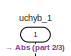
[diagram: wspolczynniki - part 1/3, top left region]
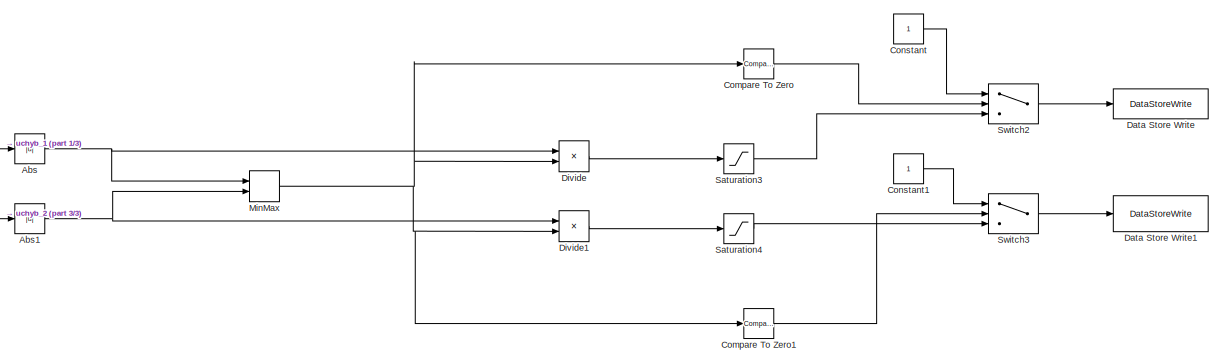
[diagram: wspolczynniki - part 2/3, full width, middle band]
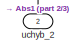
[diagram: wspolczynniki - part 3/3, bottom left region]
BLOCK [SubSystem] wspolczynniki
  Ports = [2]
  RequestExecContextInheritance = off
BLOCK [Abs] wspolczynniki/Abs
  SaturateOnIntegerOverflow = off
BLOCK [Abs] wspolczynniki/Abs1
  SaturateOnIntegerOverflow = off
BLOCK [Reference] wspolczynniki/Compare To Zero  REF=simulink/Logic and Bit
Operations/Compare
To Zero
  OutDataTypeStr = boolean
  Ports = [1, 1]
  SourceBlock = simulink/Logic and Bit\nOperations/Compare\nTo Zero
  SourceType = Compare To Zero
  ZeroCross = on
  relop = ==
BLOCK [Reference] wspolczynniki/Compare To Zero1  REF=simulink/Logic and Bit
Operations/Compare
To Zero
  OutDataTypeStr = boolean
  Ports = [1, 1]
  SourceBlock = simulink/Logic and Bit\nOperations/Compare\nTo Zero
  SourceType = Compare To Zero
  ZeroCross = on
  relop = ==
BLOCK [Constant] wspolczynniki/Constant
BLOCK [Constant] wspolczynniki/Constant1
BLOCK [DataStoreWrite] wspolczynniki/Data Store Write
  DataStoreName = wspolczynnik_1
  Ports = [1]
BLOCK [DataStoreWrite] wspolczynniki/Data Store Write1
  DataStoreName = wspolczynnik_2
  Ports = [1]
BLOCK [Product] wspolczynniki/Divide
  InputSameDT = off
  Inputs = */
  OutDataTypeStr = Inherit: Inherit via internal rule
  Ports = [2, 1]
  RndMeth = Floor
  SaturateOnIntegerOverflow = off
BLOCK [Product] wspolczynniki/Divide1
  InputSameDT = off
  Inputs = */
  OutDataTypeStr = Inherit: Inherit via internal rule
  Ports = [2, 1]
  RndMeth = Floor
  SaturateOnIntegerOverflow = off
BLOCK [MinMax] wspolczynniki/MinMax
  Function = max
  InputSameDT = off
  Inputs = 2
  Ports = [2, 1]
  SaturateOnIntegerOverflow = off
BLOCK [Saturate] wspolczynniki/Saturation3
  InputPortMap = u0
  LowerLimit = 0.05
  Ports = [1, 1]
  UpperLimit = 1
BLOCK [Saturate] wspolczynniki/Saturation4
  InputPortMap = u0
  LowerLimit = 0.05
  Ports = [1, 1]
  UpperLimit = 1
BLOCK [Switch] wspolczynniki/Switch2
  Criteria = u2 > Threshold
  InputSameDT = off
  SaturateOnIntegerOverflow = off
BLOCK [Switch] wspolczynniki/Switch3
  Criteria = u2 > Threshold
  InputSameDT = off
  SaturateOnIntegerOverflow = off
BLOCK [Inport] wspolczynniki/uchyb_1
  IconDisplay = Port number
BLOCK [Inport] wspolczynniki/uchyb_2
  IconDisplay = Port number
  Port = 2
ANNOTATION OZK: fi2
ANNOTATION OZK: initial value na 120
LINE DS1104ENC_POS_C2:1 -> Gain3:1
LINE DS1104ENC_POS_C2:2 -> Terminator1:1
LINE Data Store Read2:1 -> Switch9:3
LINE Data Store Read3:1 -> Switch10:3
LINE Data Store Read5:1 -> OZK:2
LINE Data Store Read6:1 -> OZK:3
LINE Gain1:1 -> Sum:1
LINE Gain2:1 -> DS1104DAC_C1:1
LINE Gain3:1 -> Sum1:1
LINE Gain4:1 -> DS1104DAC_C2:1
LINE OZK/Add1:1 -> OZK/Sqrt:1
LINE OZK/Add2:1 -> OZK/Sqrt1:1
LINE OZK/Add3:1 -> OZK/Trigonometric Function4:2
LINE OZK/Add4:1 -> OZK/Gain3:1
LINE OZK/Add5:1 -> OZK/Gain4:1
LINE OZK/Add:1 -> OZK/L:1
LINE OZK/Compare To Constant1:1 -> OZK/and_ogr:2
LINE OZK/Compare To Constant:1 -> OZK/and_ogr:1
LINE OZK/Data Store Read1:1 -> OZK/Switch2:2
LINE OZK/Data Store Read2:1 -> OZK/Logical Operator3:1
LINE OZK/Data Store Read3:1 -> OZK/Logical Operator4:1
LINE OZK/Data Store Read4:1 -> OZK/Logical Operator2:1
LINE OZK/Data Store Read5:1 -> OZK/Switch5:3
LINE OZK/Data Store Read6:1 -> OZK/Switch6:3
LINE OZK/Data Store Read8:1 -> OZK/Switch3:1
LINE OZK/Data Store Read9:1 -> OZK/Switch4:1
LINE OZK/Gain1:1 -> OZK/Switch2:1
LINE OZK/Gain2:1 -> OZK/WZ2:1
LINE OZK/Gain3:1 -> OZK/WZ1:1
NET OZK/Gain4:1 -> OZK/Trigonometric Function6:1, OZK/Trigonometric Function8:1
NET OZK/Gain5:1 -> OZK/Trigonometric Function5:1, OZK/Trigonometric Function7:1
NET OZK/L1_mm:1 -> OZK/Add3:1, OZK/Product2:1, OZK/Product4:2, OZK/Product5:1, OZK/kw_3:1
NET OZK/L2_mm :1 -> OZK/Product1:2, OZK/Product3:1, OZK/Product4:3, OZK/Product6:1, OZK/Product:2, OZK/kw_4:1
NET OZK/L:1 -> OZK/Trigonometric Function:2, OZK/kw_5:1
LINE OZK/Logical Operator2:1 -> OZK/ON//OFF:1
LINE OZK/Logical Operator3:1 -> OZK/Logical Operator2:2
LINE OZK/Logical Operator4:1 -> OZK/Logical Operator2:3
NET OZK/Memory1:1 -> OZK/Add5:1, OZK/Gain5:1, OZK/Switch5:1
NET OZK/Memory2:1 -> OZK/Add5:3, OZK/Switch6:1
LINE OZK/Memory4:1 -> OZK/Switch1:3
LINE OZK/OZK_ON/Data Store Read5:1 -> OZK/OZK_ON/Logical Operator6:1
LINE OZK/OZK_ON/Data Store Read6:1 -> OZK/OZK_ON/Logical Operator7:1
LINE OZK/OZK_ON/Data Store Read7:1 -> OZK/OZK_ON/Logical Operator5:1
LINE OZK/OZK_ON/Logical Operator5:1 -> OZK/OZK_ON/ON//OFF:1
LINE OZK/OZK_ON/Logical Operator6:1 -> OZK/OZK_ON/Logical Operator5:2
LINE OZK/OZK_ON/Logical Operator7:1 -> OZK/OZK_ON/Logical Operator5:3
LINE OZK/OZK_ON1/Data Store Read5:1 -> OZK/OZK_ON1/Logical Operator6:1
LINE OZK/OZK_ON1/Data Store Read6:1 -> OZK/OZK_ON1/Logical Operator7:1
LINE OZK/OZK_ON1/Data Store Read7:1 -> OZK/OZK_ON1/Logical Operator5:1
LINE OZK/OZK_ON1/Logical Operator5:1 -> OZK/OZK_ON1/ON//OFF:1
LINE OZK/OZK_ON1/Logical Operator6:1 -> OZK/OZK_ON1/Logical Operator5:2
LINE OZK/OZK_ON1/Logical Operator7:1 -> OZK/OZK_ON1/Logical Operator5:3
NET OZK/OZK_ON1:1 -> OZK/Switch5:2, OZK/Switch6:2
NET OZK/OZK_ON:1 -> OZK/Switch3:2, OZK/Switch4:2
LINE OZK/Product1:1 -> OZK/Trigonometric Function4:1
LINE OZK/Product2:1 -> OZK/x:1
LINE OZK/Product3:1 -> OZK/x:2
LINE OZK/Product4:1 -> OZK/L:2
LINE OZK/Product5:1 -> OZK/y:1
LINE OZK/Product6:1 -> OZK/y:2
LINE OZK/Product:1 -> OZK/Add3:2
NET OZK/Sqrt1:1 -> OZK/Gain1:1, OZK/Switch2:3
NET OZK/Sqrt:1 -> OZK/Compare To Constant1:1, OZK/Compare To Constant:1
NET OZK/Switch1:1 -> OZK/Memory4:1, OZK/Trigonometric Function1:1, OZK/kw_2:1, OZK/tryb_wyzwalania_2:1
LINE OZK/Switch2:1 -> OZK/Trigonometric Function:1
LINE OZK/Switch3:1 -> OZK/Data Store Write:1
LINE OZK/Switch4:1 -> OZK/Data Store Write1:1
LINE OZK/Switch5:1 -> OZK/Data Store Write2:1
LINE OZK/Switch6:1 -> OZK/Data Store Write3:1
NET OZK/Switch7:1 -> OZK/Switch1:1, OZK/kw_7:1
NET OZK/Switch8:1 -> OZK/Switch:1, OZK/kw_6:1
NET OZK/Switch:1 -> OZK/Trigonometric Function1:2, OZK/kw_1:1, OZK/poprzednia_x:1, OZK/tryb_wyzwalania_1:1
LINE OZK/Trigonometric Function1:1 -> OZK/Add4:1
LINE OZK/Trigonometric Function2:1 -> OZK/Product1:1
LINE OZK/Trigonometric Function3:1 -> OZK/Product:1
LINE OZK/Trigonometric Function4:1 -> OZK/Add4:2
LINE OZK/Trigonometric Function5:1 -> OZK/Product5:2
LINE OZK/Trigonometric Function6:1 -> OZK/Product6:2
LINE OZK/Trigonometric Function7:1 -> OZK/Product2:2
LINE OZK/Trigonometric Function8:1 -> OZK/Product3:2
NET OZK/Trigonometric Function:1 -> OZK/Gain2:1, OZK/Trigonometric Function2:1, OZK/Trigonometric Function3:1
LINE OZK/WZ1_poprzdnia:1 -> OZK/Memory1:1
LINE OZK/WZ2_poprzdnia :1 -> OZK/Memory2:1
NET OZK/WZx:1 -> OZK/Switch8:3, OZK/tryb_wyzwalania_1:2
NET OZK/WZy:1 -> OZK/Switch7:3, OZK/tryb_wyzwalania_2:2
NET OZK/and_ogr:1 -> OZK/Switch1:2, OZK/Switch:2
LINE OZK/dwa:1 -> OZK/Product4:1
LINE OZK/jeden:1 -> OZK/Add2:1
LINE OZK/kat :1 -> OZK/Add5:2
NET OZK/kw_1/In1:1 -> OZK/kw_1/Product2:1, OZK/kw_1/Product2:2
LINE OZK/kw_1/Product2:1 -> OZK/kw_1/Out1:1
LINE OZK/kw_1:1 -> OZK/Add:3
NET OZK/kw_2/In1:1 -> OZK/kw_2/Product2:1, OZK/kw_2/Product2:2
LINE OZK/kw_2/Product2:1 -> OZK/kw_2/Out1:1
LINE OZK/kw_2:1 -> OZK/Add:4
NET OZK/kw_3/In1:1 -> OZK/kw_3/Product2:1, OZK/kw_3/Product2:2
LINE OZK/kw_3/Product2:1 -> OZK/kw_3/Out1:1
LINE OZK/kw_3:1 -> OZK/Add:1
NET OZK/kw_4/In1:1 -> OZK/kw_4/Product2:1, OZK/kw_4/Product2:2
LINE OZK/kw_4/Product2:1 -> OZK/kw_4/Out1:1
LINE OZK/kw_4:1 -> OZK/Add:2
NET OZK/kw_5/In1:1 -> OZK/kw_5/Product2:1, OZK/kw_5/Product2:2
LINE OZK/kw_5/Product2:1 -> OZK/kw_5/Out1:1
LINE OZK/kw_5:1 -> OZK/Add2:2
NET OZK/kw_6/In1:1 -> OZK/kw_6/Product2:1, OZK/kw_6/Product2:2
LINE OZK/kw_6/Product2:1 -> OZK/kw_6/Out1:1
LINE OZK/kw_6:1 -> OZK/Add1:1
NET OZK/kw_7/In1:1 -> OZK/kw_7/Product2:1, OZK/kw_7/Product2:2
LINE OZK/kw_7/Product2:1 -> OZK/kw_7/Out1:1
LINE OZK/kw_7:1 -> OZK/Add1:2
LINE OZK/poprzednia_x:1 -> OZK/Switch:3
LINE OZK/tryb_wyzwalania_1/Data Store Read2:1 -> OZK/tryb_wyzwalania_1/ON//OFF:1
LINE OZK/tryb_wyzwalania_1/Data Store Read3:1 -> OZK/tryb_wyzwalania_1/Switch9:2
LINE OZK/tryb_wyzwalania_1/Memory3:1 -> OZK/tryb_wyzwalania_1/Switch9:3
LINE OZK/tryb_wyzwalania_1/Switch9:1 -> OZK/tryb_wyzwalania_1/WZ_out:1
LINE OZK/tryb_wyzwalania_1/WZ:1 -> OZK/tryb_wyzwalania_1/Switch9:1
LINE OZK/tryb_wyzwalania_1/WZ_poprzednia:1 -> OZK/tryb_wyzwalania_1/Memory3:1
LINE OZK/tryb_wyzwalania_1:1 -> OZK/Switch8:1
LINE OZK/tryb_wyzwalania_1:2 -> OZK/Switch8:2
LINE OZK/tryb_wyzwalania_2/Data Store Read2:1 -> OZK/tryb_wyzwalania_2/ON//OFF:1
LINE OZK/tryb_wyzwalania_2/Data Store Read3:1 -> OZK/tryb_wyzwalania_2/Switch9:2
LINE OZK/tryb_wyzwalania_2/Memory3:1 -> OZK/tryb_wyzwalania_2/Switch9:3
LINE OZK/tryb_wyzwalania_2/Switch9:1 -> OZK/tryb_wyzwalania_2/WZ_out:1
LINE OZK/tryb_wyzwalania_2/WZ:1 -> OZK/tryb_wyzwalania_2/Switch9:1
LINE OZK/tryb_wyzwalania_2/WZ_poprzednia:1 -> OZK/tryb_wyzwalania_2/Memory3:1
LINE OZK/tryb_wyzwalania_2:1 -> OZK/Switch7:1
LINE OZK/tryb_wyzwalania_2:2 -> OZK/Switch7:2
LINE OZK/x:1 -> OZK/Switch3:3
LINE OZK/y:1 -> OZK/Switch4:3
LINE OZK:1 -> Switch9:1
NET OZK:2 -> Switch10:2, Switch9:2
LINE OZK:3 -> Switch10:1
LINE Rate Limiter1:1 -> Gain2:1
LINE Rate Limiter2:1 -> Gain4:1
LINE Saturation1:1 -> predkosc_zadana_1:1
LINE Saturation2:1 -> predkosc_zadana_2:1
NET Sum1:1 -> reg P2:1, wspolczynniki:2
NET Sum:1 -> reg P1:1, wspolczynniki:1
NET Switch10:1 -> Switch1:3, tryb_wyzwalania_2:2
LINE Switch1:1 -> sprawdzenie_poprawnosci_WZ2:2
LINE Switch4:1 -> Rate Limiter1:1
LINE Switch5:1 -> Rate Limiter2:1
LINE Switch8:1 -> sprawdzenie_poprawnosci_WZ1:2
NET Switch9:1 -> Switch8:3, tryb_wyzwalania_1:2
LINE _DS1104ENC_POS_C1:1 -> Gain1:1
LINE _DS1104ENC_POS_C1:2 -> Terminator:1
LINE bazowanie_1/Constant2:1 -> bazowanie_1/Switch6:1
LINE bazowanie_1/Constant:1 -> bazowanie_1/v_bazowania:1
LINE bazowanie_1/DS1104BIT_IN_C0:1 -> bazowanie_1/Logical Operator1:1
LINE bazowanie_1/Data Store Read2:1 -> bazowanie_1/S-R Flip-Flop:1
LINE bazowanie_1/Data Store Read4:1 -> bazowanie_1/Switch6:3
LINE bazowanie_1/Detect Fall Nonpositive:1 -> bazowanie_1/Data Store Write2:1
LINE bazowanie_1/Logical Operator1:1 -> bazowanie_1/S-R Flip-Flop:2
NET bazowanie_1/S-R Flip-Flop:1 -> bazowanie_1/Data Store Write1:1, bazowanie_1/Detect Fall Nonpositive:1, bazowanie_1/ON//OFF:1, bazowanie_1/Switch6:2
LINE bazowanie_1/S-R Flip-Flop:2 -> bazowanie_1/DS1104ENC_SET_POS_C1:trigger
LINE bazowanie_1/Switch6:1 -> bazowanie_1/Data Store Write:1
LINE bazowanie_1:1 -> Switch4:1
LINE bazowanie_1:2 -> Switch4:2
LINE bazowanie_2 /Constant1:1 -> bazowanie_2 /v_bazowania:1
LINE bazowanie_2 /Constant3:1 -> bazowanie_2 /Switch7:1
LINE bazowanie_2 /DS1104BIT_IN_C1:1 -> bazowanie_2 /Logical Operator3:1
LINE bazowanie_2 /Data Store Read3:1 -> bazowanie_2 /S-R Flip-Flop1:1
LINE bazowanie_2 /Data Store Read5:1 -> bazowanie_2 /Switch7:3
LINE bazowanie_2 /Logical Operator3:1 -> bazowanie_2 /S-R Flip-Flop1:2
NET bazowanie_2 /S-R Flip-Flop1:1 -> bazowanie_2 /Data Store Write1:1, bazowanie_2 /On//OFF:1, bazowanie_2 /Switch7:2
LINE bazowanie_2 /S-R Flip-Flop1:2 -> bazowanie_2 /DS1104ENC_SET_POS_C2:trigger
LINE bazowanie_2 /Switch7:1 -> bazowanie_2 /Data Store Write3:1
LINE bazowanie_2 :1 -> Switch5:1
LINE bazowanie_2 :2 -> Switch5:2
LINE koordynacja_predkosci_1/Data Store Read3:1 -> koordynacja_predkosci_1/Product:1
LINE koordynacja_predkosci_1/Product:1 -> koordynacja_predkosci_1/V_out:1
LINE koordynacja_predkosci_1/V_z_serwa:1 -> koordynacja_predkosci_1/Product:2
LINE koordynacja_predkosci_1:1 -> Switch4:3
LINE koordynacja_predkosci_2/Data Store Read3:1 -> koordynacja_predkosci_2/Product:1
LINE koordynacja_predkosci_2/Product:1 -> koordynacja_predkosci_2/V_out:1
LINE koordynacja_predkosci_2/V_z_serwa:1 -> koordynacja_predkosci_2/Product:2
LINE koordynacja_predkosci_2:1 -> Switch5:3
LINE predkosc_zadana_1/Compare To Constant1:1 -> predkosc_zadana_1/Logical Operator1:2
LINE predkosc_zadana_1/Compare To Constant:1 -> predkosc_zadana_1/Logical Operator1:1
LINE predkosc_zadana_1/Data Store Read3:1 -> predkosc_zadana_1/reg P3:1
LINE predkosc_zadana_1/Logical Operator1:1 -> predkosc_zadana_1/Switch7:2
LINE predkosc_zadana_1/Memory3:1 -> predkosc_zadana_1/Switch7:3
LINE predkosc_zadana_1/Product:1 -> predkosc_zadana_1/V_out:1
NET predkosc_zadana_1/Switch7:1 -> predkosc_zadana_1/Memory3:1, predkosc_zadana_1/Product:1
LINE predkosc_zadana_1/V_z_serwa:1 -> predkosc_zadana_1/Product:2
NET predkosc_zadana_1/reg P3:1 -> predkosc_zadana_1/Compare To Constant1:1, predkosc_zadana_1/Compare To Constant:1, predkosc_zadana_1/Switch7:1
LINE predkosc_zadana_1:1 -> koordynacja_predkosci_1:1
LINE predkosc_zadana_2/Compare To Constant1:1 -> predkosc_zadana_2/Logical Operator1:2
LINE predkosc_zadana_2/Compare To Constant:1 -> predkosc_zadana_2/Logical Operator1:1
LINE predkosc_zadana_2/Data Store Read3:1 -> predkosc_zadana_2/reg P3:1
LINE predkosc_zadana_2/Logical Operator1:1 -> predkosc_zadana_2/Switch7:2
LINE predkosc_zadana_2/Memory3:1 -> predkosc_zadana_2/Switch7:3
LINE predkosc_zadana_2/Product:1 -> predkosc_zadana_2/V_out:1
NET predkosc_zadana_2/Switch7:1 -> predkosc_zadana_2/Memory3:1, predkosc_zadana_2/Product:1
LINE predkosc_zadana_2/V_z_serwa:1 -> predkosc_zadana_2/Product:2
NET predkosc_zadana_2/reg P3:1 -> predkosc_zadana_2/Compare To Constant1:1, predkosc_zadana_2/Compare To Constant:1, predkosc_zadana_2/Switch7:1
LINE predkosc_zadana_2:1 -> koordynacja_predkosci_2:1
LINE reg P1:1 -> Saturation1:1
LINE reg P2:1 -> Saturation2:1
NET sprawdzenie_poprawnosci_WZ1/Memory1:1 -> sprawdzenie_poprawnosci_WZ1/Switch1:3, sprawdzenie_poprawnosci_WZ1/Switch:1
LINE sprawdzenie_poprawnosci_WZ1/Switch1:1 -> sprawdzenie_poprawnosci_WZ1/WZ_out:1
NET sprawdzenie_poprawnosci_WZ1/Switch:1 -> sprawdzenie_poprawnosci_WZ1/Switch1:1, sprawdzenie_poprawnosci_WZ1/Switch1:2
NET sprawdzenie_poprawnosci_WZ1/WZ:1 -> sprawdzenie_poprawnosci_WZ1/Switch:2, sprawdzenie_poprawnosci_WZ1/Switch:3
LINE sprawdzenie_poprawnosci_WZ1/WZ_poprzednia:1 -> sprawdzenie_poprawnosci_WZ1/Memory1:1
NET sprawdzenie_poprawnosci_WZ1:1 -> OZK:1, Sum:2, sprawdzenie_poprawnosci_WZ1:1, tryb_wyzwalania_1:1
NET sprawdzenie_poprawnosci_WZ2/Memory1:1 -> sprawdzenie_poprawnosci_WZ2/Switch1:3, sprawdzenie_poprawnosci_WZ2/Switch:1
LINE sprawdzenie_poprawnosci_WZ2/Switch1:1 -> sprawdzenie_poprawnosci_WZ2/WZ_out:1
NET sprawdzenie_poprawnosci_WZ2/Switch:1 -> sprawdzenie_poprawnosci_WZ2/Switch1:1, sprawdzenie_poprawnosci_WZ2/Switch1:2
NET sprawdzenie_poprawnosci_WZ2/WZ:1 -> sprawdzenie_poprawnosci_WZ2/Switch:2, sprawdzenie_poprawnosci_WZ2/Switch:3
LINE sprawdzenie_poprawnosci_WZ2/WZ_poprzednia:1 -> sprawdzenie_poprawnosci_WZ2/Memory1:1
NET sprawdzenie_poprawnosci_WZ2:1 -> OZK:4, Sum1:2, sprawdzenie_poprawnosci_WZ2:1, tryb_wyzwalania_2:1
LINE tryb_wyzwalania_1/Data Store Read1:1 -> tryb_wyzwalania_1/Logical Operator1:2
LINE tryb_wyzwalania_1/Data Store Read2:1 -> tryb_wyzwalania_1/ON//OFF:1
LINE tryb_wyzwalania_1/Data Store Read3:1 -> tryb_wyzwalania_1/Logical Operator1:1
LINE tryb_wyzwalania_1/Logical Operator1:1 -> tryb_wyzwalania_1/Switch9:2
LINE tryb_wyzwalania_1/Memory3:1 -> tryb_wyzwalania_1/Switch9:3
LINE tryb_wyzwalania_1/Switch9:1 -> tryb_wyzwalania_1/WZ_out:1
LINE tryb_wyzwalania_1/WZ:1 -> tryb_wyzwalania_1/Switch9:1
LINE tryb_wyzwalania_1/WZ_poprzednia:1 -> tryb_wyzwalania_1/Memory3:1
LINE tryb_wyzwalania_1:1 -> Switch8:1
LINE tryb_wyzwalania_1:2 -> Switch8:2
LINE tryb_wyzwalania_2/Data Store Read1:1 -> tryb_wyzwalania_2/Logical Operator1:2
LINE tryb_wyzwalania_2/Data Store Read2:1 -> tryb_wyzwalania_2/ON//OFF:1
LINE tryb_wyzwalania_2/Data Store Read3:1 -> tryb_wyzwalania_2/Logical Operator1:1
LINE tryb_wyzwalania_2/Logical Operator1:1 -> tryb_wyzwalania_2/Switch9:2
LINE tryb_wyzwalania_2/Memory3:1 -> tryb_wyzwalania_2/Switch9:3
LINE tryb_wyzwalania_2/Switch9:1 -> tryb_wyzwalania_2/WZ_out:1
LINE tryb_wyzwalania_2/WZ:1 -> tryb_wyzwalania_2/Switch9:1
LINE tryb_wyzwalania_2/WZ_poprzednia:1 -> tryb_wyzwalania_2/Memory3:1
LINE tryb_wyzwalania_2:1 -> Switch1:1
LINE tryb_wyzwalania_2:2 -> Switch1:2
NET wspolczynniki/Abs1:1 -> wspolczynniki/Divide1:1, wspolczynniki/MinMax:2
NET wspolczynniki/Abs:1 -> wspolczynniki/Divide:1, wspolczynniki/MinMax:1
LINE wspolczynniki/Compare To Zero1:1 -> wspolczynniki/Switch3:2
LINE wspolczynniki/Compare To Zero:1 -> wspolczynniki/Switch2:2
LINE wspolczynniki/Constant1:1 -> wspolczynniki/Switch3:1
LINE wspolczynniki/Constant:1 -> wspolczynniki/Switch2:1
LINE wspolczynniki/Divide1:1 -> wspolczynniki/Saturation4:1
LINE wspolczynniki/Divide:1 -> wspolczynniki/Saturation3:1
NET wspolczynniki/MinMax:1 -> wspolczynniki/Compare To Zero1:1, wspolczynniki/Compare To Zero:1, wspolczynniki/Divide1:2, wspolczynniki/Divide:2
LINE wspolczynniki/Saturation3:1 -> wspolczynniki/Switch2:3
LINE wspolczynniki/Saturation4:1 -> wspolczynniki/Switch3:3
LINE wspolczynniki/Switch2:1 -> wspolczynniki/Data Store Write:1
LINE wspolczynniki/Switch3:1 -> wspolczynniki/Data Store Write1:1
LINE wspolczynniki/uchyb_1:1 -> wspolczynniki/Abs:1
LINE wspolczynniki/uchyb_2:1 -> wspolczynniki/Abs1:1
note: NET lines group one-source signal fan-out (src -> all destinations, sorted); 1:1 wires keep LINE
